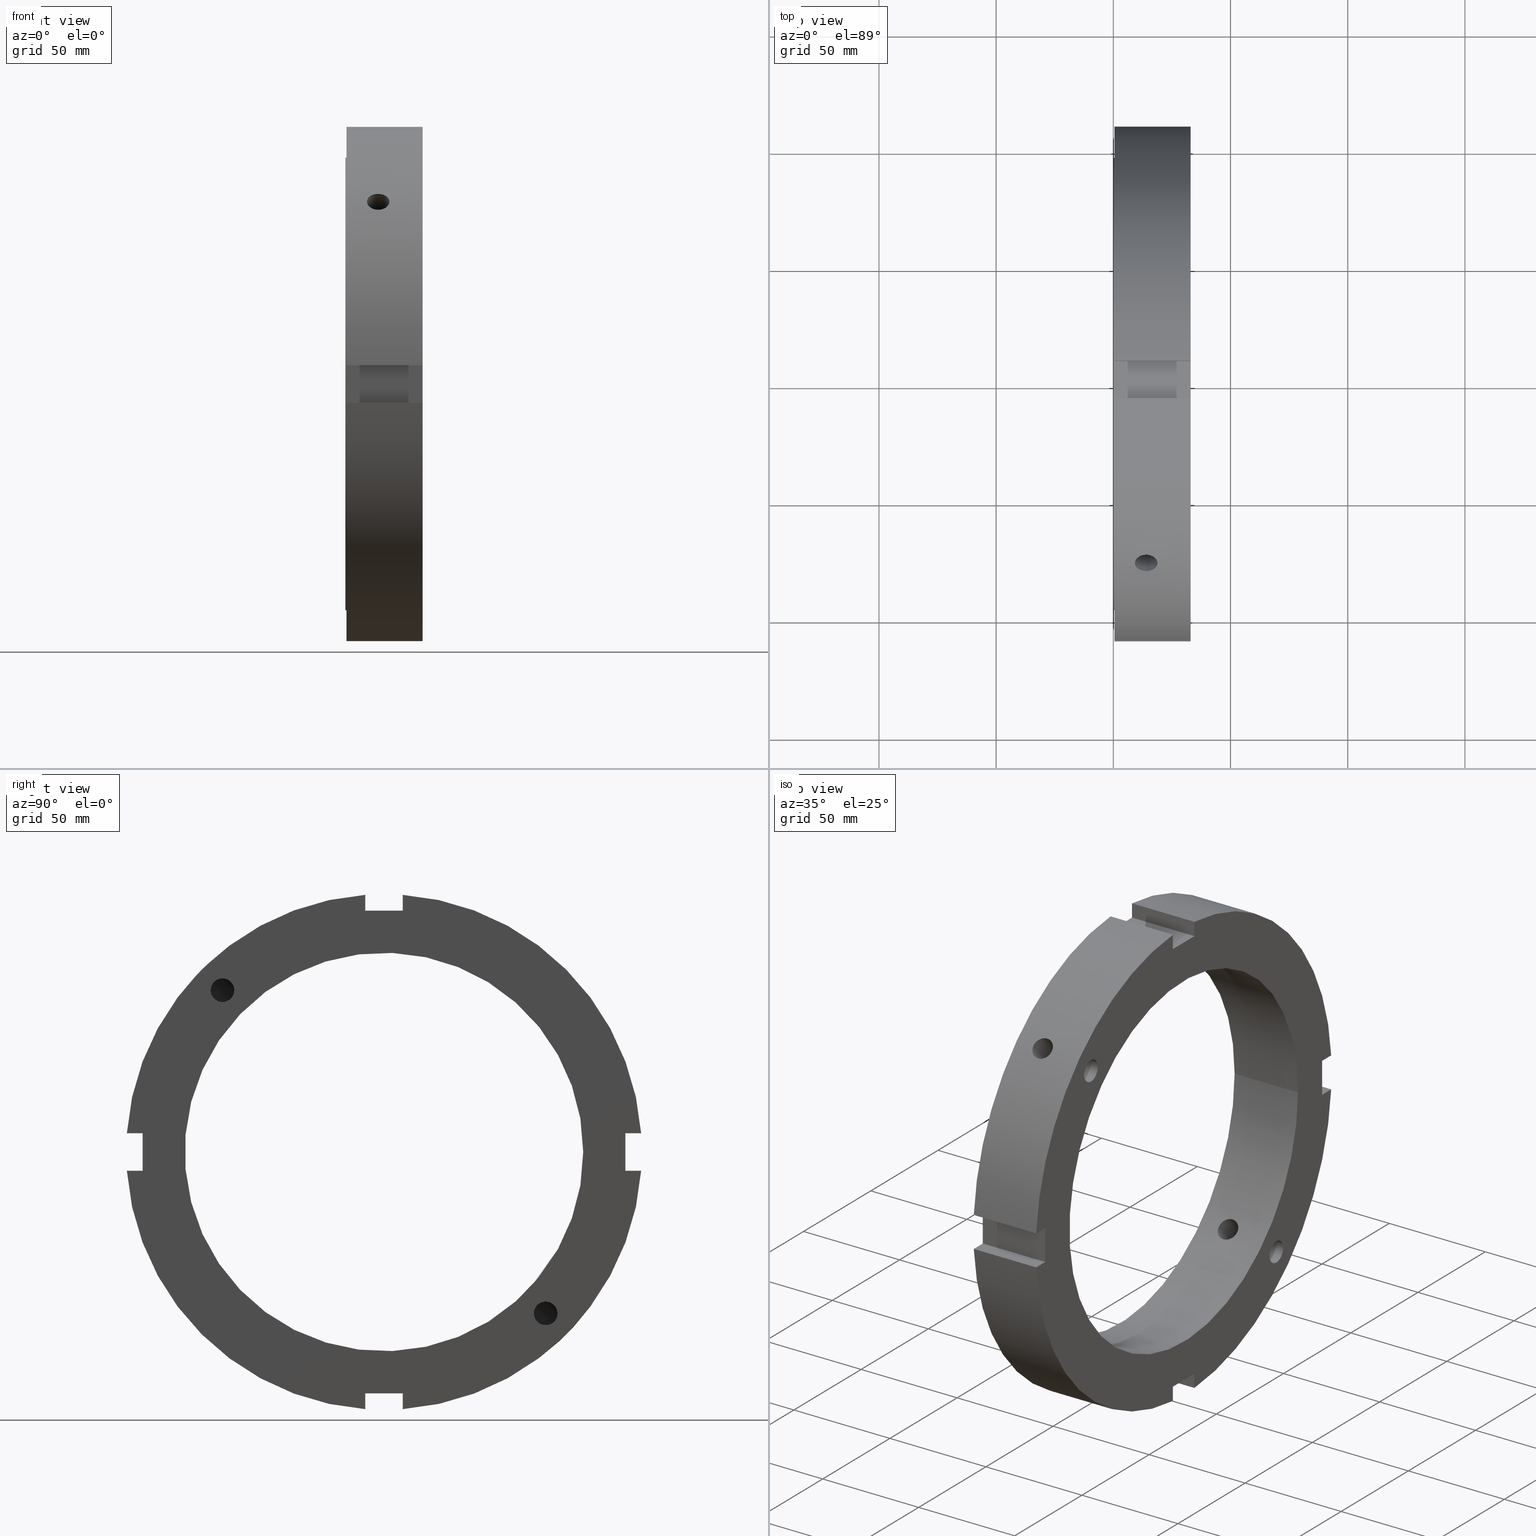
[diagram: canonical four-view strip — front | top / right | iso, engineering-drawing reading convention]
A machine part, canonical four-view strip (front | top / right | iso — engineering-drawing reading convention). The complete STEP part file that produces these views, byte-faithful:
ISO-10303-21;
HEADER;
/****************************************************************
 * Generated by software with PDElib inside                    *
 * PDElib Version v51a, created Wed 11/30/2011                  *
 * ITI Transcendata (http://www.transcendata.com/)              *
 ****************************************************************/
FILE_DESCRIPTION((''),'2;1');
FILE_NAME('C:\\Users\\sugidesign\\Documents\\Fukuda\\3Ddata\\ZMVtype\\FKD ZMV170.stp','2014-02-22T07:07:10',('sugidesign'),(''),'Autodesk Inventor LT ','Autodesk Inventor LT ','');
FILE_SCHEMA(('CONFIG_CONTROL_DESIGN'));
ENDSEC;
DATA;
#5=APPLICATION_CONTEXT('configuration controlled 3D designs of mechanical parts and assemblies');
#6=APPLICATION_PROTOCOL_DEFINITION('International Standard','ap203_configuration_controlled_3d_design_of_mechanical_parts_and_assemblies_mim_lf',2004,#5);
#7=PRODUCT_CONTEXT('',#5,'mechanical');
#8=PRODUCT('FKD ZMV170','FKD ZMV170',$,(#7));
#9=PRODUCT_RELATED_PRODUCT_CATEGORY('part',$,(#8));
#10=PRODUCT_DEFINITION_FORMATION('',$,#8);
#11=PRODUCT_DEFINITION_CONTEXT('part definition',#5,'design');
#12=PRODUCT_DEFINITION('',$,#10,#11);
#18=(NAMED_UNIT(*)PLANE_ANGLE_UNIT()SI_UNIT($,.RADIAN.));
#19=DIMENSIONAL_EXPONENTS(0.0,0.0,0.0,0.0,0.0,0.0,0.0);
#20=PLANE_ANGLE_MEASURE_WITH_UNIT(PLANE_ANGLE_MEASURE(0.0174532925),#18);
#24=(CONVERSION_BASED_UNIT('DEGREE',#20)NAMED_UNIT(#19)PLANE_ANGLE_UNIT());
#28=(NAMED_UNIT(*)SI_UNIT($,.STERADIAN.)SOLID_ANGLE_UNIT());
#32=(LENGTH_UNIT()NAMED_UNIT(*)SI_UNIT(.MILLI.,.METRE.));
#34=UNCERTAINTY_MEASURE_WITH_UNIT(LENGTH_MEASURE(0.01),#32,'DISTANCE_ACCURACY_VALUE','');
#36=(GEOMETRIC_REPRESENTATION_CONTEXT(3)GLOBAL_UNCERTAINTY_ASSIGNED_CONTEXT((#34))GLOBAL_UNIT_ASSIGNED_CONTEXT((#24,#28,#32))REPRESENTATION_CONTEXT('None','None'));
#37=AXIS2_PLACEMENT_3D('',#38,#39,#40);
#38=CARTESIAN_POINT('',(0.0,0.0,0.0));
#39=DIRECTION('',(0.0,0.0,1.0));
#40=DIRECTION('',(1.0,0.0,0.0));
#41=SHAPE_REPRESENTATION('',(#37),#36);
#42=PRODUCT_DEFINITION_SHAPE('','',#12);
#43=SHAPE_DEFINITION_REPRESENTATION(#42,#41);
#49=(NAMED_UNIT(*)PLANE_ANGLE_UNIT()SI_UNIT($,.RADIAN.));
#50=DIMENSIONAL_EXPONENTS(0.0,0.0,0.0,0.0,0.0,0.0,0.0);
#51=PLANE_ANGLE_MEASURE_WITH_UNIT(PLANE_ANGLE_MEASURE(0.0174532925),#49);
#55=(CONVERSION_BASED_UNIT('DEGREE',#51)NAMED_UNIT(#50)PLANE_ANGLE_UNIT());
#59=(NAMED_UNIT(*)SI_UNIT($,.STERADIAN.)SOLID_ANGLE_UNIT());
#63=(LENGTH_UNIT()NAMED_UNIT(*)SI_UNIT(.MILLI.,.METRE.));
#65=UNCERTAINTY_MEASURE_WITH_UNIT(LENGTH_MEASURE(0.000001),#63,'DISTANCE_ACCURACY_VALUE','');
#67=(GEOMETRIC_REPRESENTATION_CONTEXT(3)GLOBAL_UNCERTAINTY_ASSIGNED_CONTEXT((#65))GLOBAL_UNIT_ASSIGNED_CONTEXT((#55,#59,#63))REPRESENTATION_CONTEXT('','3D'));
#68=CARTESIAN_POINT('',(23.499999999999979,-68.942911165688358,68.942911165688386));
#69=DIRECTION('',(-1.0,0.0,0.0));
#70=DIRECTION('',(0.0,-1.0,0.0));
#71=AXIS2_PLACEMENT_3D('',#68,#69,#70);
#72=CYLINDRICAL_SURFACE('',#71,5.053);
#73=CARTESIAN_POINT('',(32.999999999999979,-73.995911165688355,68.942911165688386));
#74=VERTEX_POINT('',#73);
#75=CARTESIAN_POINT('',(32.999999999999979,-68.942911165688358,68.942911165688386));
#76=DIRECTION('',(-1.0,0.0,0.0));
#77=DIRECTION('',(0.0,-1.0,0.0));
#78=AXIS2_PLACEMENT_3D('',#75,#76,#77);
#79=CIRCLE('',#78,5.053);
#80=EDGE_CURVE('',#74,#74,#79,.T.);
#81=ORIENTED_EDGE('',*,*,#80,.F.);
#82=EDGE_LOOP('',(#81));
#83=FACE_OUTER_BOUND('',#82,.T.);
#84=CARTESIAN_POINT('',(13.999999999999979,-71.220598841063975,64.432373741673146));
#85=VERTEX_POINT('',#84);
#86=CARTESIAN_POINT('',(13.999999999999979,-64.432373741673118,71.220598841064032));
#87=VERTEX_POINT('',#86);
#88=CARTESIAN_POINT('',(13.999999999999979,-71.220598841063989,64.43237374167316));
#89=CARTESIAN_POINT('',(14.37139421069039,-71.220598841063989,64.43237374167316));
#90=CARTESIAN_POINT('',(14.685553977055426,-71.105705954268643,64.372922694567706));
#91=CARTESIAN_POINT('',(15.289385659561658,-70.789550454092762,64.236279865251419));
#92=CARTESIAN_POINT('',(15.576289933320794,-70.583731500313078,64.157456766124014));
#93=CARTESIAN_POINT('',(16.421279167485341,-69.877688991108485,63.953013115652539));
#94=CARTESIAN_POINT('',(16.951953474617987,-69.292086581676372,63.866779220975602));
#95=CARTESIAN_POINT('',(17.78353966815806,-68.170908368830837,63.921641481316662));
#96=CARTESIAN_POINT('',(18.1497572622063,-67.568788753036969,64.039148783968358));
#97=CARTESIAN_POINT('',(18.53149849689828,-66.691785693254815,64.40795621343149));
#98=CARTESIAN_POINT('',(18.631769033099488,-66.403298295562124,64.562172010366396));
#99=CARTESIAN_POINT('',(18.766048692575104,-65.857991936192761,64.927468173133619));
#100=CARTESIAN_POINT('',(18.799999999999986,-65.601196418013942,65.138604782691544));
#101=CARTESIAN_POINT('',(18.799999999999983,-65.138604782691516,65.601196418013984));
#102=CARTESIAN_POINT('',(18.766048692575104,-64.927468173133576,65.857991936192818));
#103=CARTESIAN_POINT('',(18.631769033099474,-64.562172010366353,66.403298295562195));
#104=CARTESIAN_POINT('',(18.531498496898273,-64.407956213431433,66.691785693254886));
#105=CARTESIAN_POINT('',(18.149757262206279,-64.039148783968315,67.568788753037069));
#106=CARTESIAN_POINT('',(17.783539668158063,-63.921641481316612,68.170908368830936));
#107=CARTESIAN_POINT('',(16.951953474617984,-63.866779220975573,69.292086581676472));
#108=CARTESIAN_POINT('',(16.421279167485299,-63.953013115652517,69.877688991108528));
#109=CARTESIAN_POINT('',(15.576289933320755,-64.157456766123985,70.583731500313107));
#110=CARTESIAN_POINT('',(15.289385659561638,-64.236279865251404,70.789550454092804));
#111=CARTESIAN_POINT('',(14.685553977055415,-64.372922694567691,71.105705954268672));
#112=CARTESIAN_POINT('',(14.371394210690385,-64.432373741673089,71.220598841063932));
#113=CARTESIAN_POINT('',(13.999999999999979,-64.432373741673089,71.220598841063932));
#114=B_SPLINE_CURVE_WITH_KNOTS('',3,(#88,#89,#90,#91,#92,#93,#94,#95,#96,#97,#98,#99,#100,#101,#102,#103,#104,#105,#106,#107,#108,#109,#110,#111,#112,#113),.UNSPECIFIED.,.F.,.U.,(4,2,2,2,2,2,2,2,2,2,2,2,4),(0.0,0.111418263207123,0.222836526414245,0.44567305282849,0.641934062182487,0.740064566859486,0.838195071536484,0.936325576213484,1.034456080890484,1.230717090244485,1.453553616658728,1.564971879865849,1.676390143072971),.UNSPECIFIED.);
#115=EDGE_CURVE('',#85,#87,#114,.T.);
#116=ORIENTED_EDGE('',*,*,#115,.F.);
#117=CARTESIAN_POINT('',(13.999999999999982,-73.453448589703612,66.665223490312769));
#118=VERTEX_POINT('',#117);
#119=CARTESIAN_POINT('',(13.999999999999979,-68.942911165688358,68.942911165688386));
#120=DIRECTION('',(-1.0,0.0,0.0));
#121=DIRECTION('',(0.0,-1.0,0.0));
#122=AXIS2_PLACEMENT_3D('',#119,#120,#121);
#123=CIRCLE('',#122,5.053);
#124=EDGE_CURVE('',#85,#118,#123,.T.);
#125=ORIENTED_EDGE('',*,*,#124,.T.);
#126=CARTESIAN_POINT('',(13.999999999999979,-66.665223490312698,73.453448589703612));
#127=VERTEX_POINT('',#126);
#128=CARTESIAN_POINT('',(13.999999999999979,-66.665223490312769,73.45344858970364));
#129=CARTESIAN_POINT('',(14.371394210690383,-66.665223490312769,73.45344858970364));
#130=CARTESIAN_POINT('',(14.68555397705542,-66.780116377108058,73.512899636809053));
#131=CARTESIAN_POINT('',(15.289385659561649,-67.096271877283925,73.64954246612534));
#132=CARTESIAN_POINT('',(15.576289933320771,-67.302090831063623,73.728365565252744));
#133=CARTESIAN_POINT('',(16.421279167485313,-68.008133340268216,73.932809215724234));
#134=CARTESIAN_POINT('',(16.951953474617984,-68.593735749700272,74.019043110401171));
#135=CARTESIAN_POINT('',(17.783539668158067,-69.714913962545808,73.964180850060131));
#136=CARTESIAN_POINT('',(18.149757262206272,-70.317033578339689,73.846673547408429));
#137=CARTESIAN_POINT('',(18.531498496898269,-71.194036638121872,73.477866117945297));
#138=CARTESIAN_POINT('',(18.631769033099481,-71.482524035814535,73.323650321010362));
#139=CARTESIAN_POINT('',(18.766048692575104,-72.027830395183926,72.958354158243154));
#140=CARTESIAN_POINT('',(18.799999999999983,-72.28462591336276,72.747217548685228));
#141=CARTESIAN_POINT('',(18.799999999999986,-72.7472175486852,72.284625913362802));
#142=CARTESIAN_POINT('',(18.766048692575104,-72.958354158243111,72.027830395183969));
#143=CARTESIAN_POINT('',(18.631769033099491,-73.323650321010319,71.482524035814606));
#144=CARTESIAN_POINT('',(18.531498496898294,-73.47786611794524,71.194036638121929));
#145=CARTESIAN_POINT('',(18.149757262206304,-73.846673547408358,70.317033578339775));
#146=CARTESIAN_POINT('',(17.783539668158056,-73.964180850060075,69.714913962545907));
#147=CARTESIAN_POINT('',(16.951953474617991,-74.019043110401142,68.593735749700372));
#148=CARTESIAN_POINT('',(16.421279167485352,-73.932809215724205,68.008133340268259));
#149=CARTESIAN_POINT('',(15.576289933320806,-73.72836556525273,67.302090831063666));
#150=CARTESIAN_POINT('',(15.289385659561702,-73.649542466125297,67.096271877283954));
#151=CARTESIAN_POINT('',(14.68555397705547,-73.51289963680901,66.780116377108058));
#152=CARTESIAN_POINT('',(14.371394210690392,-73.453448589703584,66.665223490312755));
#153=CARTESIAN_POINT('',(13.999999999999982,-73.453448589703584,66.665223490312755));
#154=B_SPLINE_CURVE_WITH_KNOTS('',3,(#128,#129,#130,#131,#132,#133,#134,#135,#136,#137,#138,#139,#140,#141,#142,#143,#144,#145,#146,#147,#148,#149,#150,#151,#152,#153),.UNSPECIFIED.,.F.,.U.,(4,2,2,2,2,2,2,2,2,2,2,2,4),(-1.676390143072971,-1.56497187986585,-1.453553616658728,-1.230717090244485,-1.034456080890484,-0.936325576213484,-0.838195071536484,-0.740064566859486,-0.641934062182487,-0.44567305282849,-0.222836526414245,-0.111418263207122,0.0),.UNSPECIFIED.);
#155=EDGE_CURVE('',#127,#118,#154,.T.);
#156=ORIENTED_EDGE('',*,*,#155,.F.);
#157=CARTESIAN_POINT('',(13.999999999999979,-68.942911165688358,68.942911165688386));
#158=DIRECTION('',(-1.0,0.0,0.0));
#159=DIRECTION('',(0.0,-1.0,0.0));
#160=AXIS2_PLACEMENT_3D('',#157,#158,#159);
#161=CIRCLE('',#160,5.053);
#162=EDGE_CURVE('',#127,#87,#161,.T.);
#163=ORIENTED_EDGE('',*,*,#162,.T.);
#164=EDGE_LOOP('',(#116,#125,#156,#163));
#165=FACE_BOUND('',#164,.T.);
#166=ADVANCED_FACE('',(#83,#165),#72,.F.);
#167=CARTESIAN_POINT('',(12.48192564602685,-68.942911165688358,68.942911165688386));
#168=DIRECTION('',(1.0,0.0,0.0));
#169=DIRECTION('',(0.0,-1.0,0.0));
#170=AXIS2_PLACEMENT_3D('',#167,#168,#169);
#171=CONICAL_SURFACE('',#170,2.5265,59.000000000000007);
#172=CARTESIAN_POINT('',(13.999999999999989,-73.453448589703612,66.665223490312769));
#173=CARTESIAN_POINT('',(13.899866928470605,-73.076316406116064,66.288091306725221));
#174=CARTESIAN_POINT('',(13.846507273038291,-72.69968455844166,65.914931065090542));
#175=CARTESIAN_POINT('',(13.846507273038288,-72.335287912363938,65.55053441901282));
#176=CARTESIAN_POINT('',(13.846507273038284,-71.976114872025718,65.191361378674614));
#177=CARTESIAN_POINT('',(13.899224632065541,-71.600150111992519,64.811925012601677));
#178=CARTESIAN_POINT('',(13.999999999999984,-71.220598841063989,64.432373741673146));
#179=B_SPLINE_CURVE_WITH_KNOTS('',3,(#172,#173,#174,#175,#176,#177,#178),.UNSPECIFIED.,.F.,.U.,(4,3,4),(-0.154600403689913,0.0,0.152384215465527),.UNSPECIFIED.);
#180=EDGE_CURVE('',#118,#85,#179,.T.);
#181=ORIENTED_EDGE('',*,*,#180,.F.);
#182=ORIENTED_EDGE('',*,*,#124,.F.);
#183=EDGE_LOOP('',(#181,#182));
#184=FACE_OUTER_BOUND('',#183,.T.);
#185=ADVANCED_FACE('',(#184),#171,.F.);
#186=CARTESIAN_POINT('',(12.48192564602685,-68.942911165688358,68.942911165688386));
#187=DIRECTION('',(1.0,0.0,0.0));
#188=DIRECTION('',(0.0,-1.0,0.0));
#189=AXIS2_PLACEMENT_3D('',#186,#187,#188);
#190=CONICAL_SURFACE('',#189,2.5265,59.000000000000007);
#191=CARTESIAN_POINT('',(13.99999999999997,-64.432373741673132,71.220598841064003));
#192=CARTESIAN_POINT('',(13.899224632065529,-64.811925012601662,71.600150111992519));
#193=CARTESIAN_POINT('',(13.846507273038288,-65.1913613786746,71.976114872025732));
#194=CARTESIAN_POINT('',(13.846507273038288,-65.914931065090499,72.69968455844166));
#195=CARTESIAN_POINT('',(13.899866928470592,-66.288091306725192,73.076316406116064));
#196=CARTESIAN_POINT('',(13.99999999999997,-66.665223490312712,73.453448589703584));
#197=B_SPLINE_CURVE_WITH_KNOTS('',3,(#191,#192,#193,#194,#195,#196),.UNSPECIFIED.,.F.,.U.,(4,2,4),(2.85982189161121,3.012206107076729,3.166806510766638),.UNSPECIFIED.);
#198=EDGE_CURVE('',#87,#127,#197,.T.);
#199=ORIENTED_EDGE('',*,*,#198,.F.);
#200=ORIENTED_EDGE('',*,*,#162,.F.);
#201=EDGE_LOOP('',(#199,#200));
#202=FACE_OUTER_BOUND('',#201,.T.);
#203=ADVANCED_FACE('',(#202),#190,.F.);
#204=CARTESIAN_POINT('',(13.999999999999984,-220.65470763162975,220.65470763162978));
#205=DIRECTION('',(0.0,-0.707106781186547,0.707106781186548));
#206=DIRECTION('',(1.0,0.0,0.0));
#207=AXIS2_PLACEMENT_3D('',#204,#205,#206);
#208=CYLINDRICAL_SURFACE('',#207,4.8);
#209=CARTESIAN_POINT('',(13.999999999999984,-81.101769830043281,74.313544730652438));
#210=VERTEX_POINT('',#209);
#211=CARTESIAN_POINT('',(13.999999999999984,-81.101769830043281,74.313544730652438));
#212=CARTESIAN_POINT('',(13.397219162658631,-81.101769830043281,74.313544730652438));
#213=CARTESIAN_POINT('',(12.754312377484176,-81.020444111866141,74.402605663708087));
#214=CARTESIAN_POINT('',(11.571714215531131,-80.688021853670932,74.762980297239196));
#215=CARTESIAN_POINT('',(11.03201635766915,-80.436727284065469,75.034090003951221));
#216=CARTESIAN_POINT('',(10.179758595131434,-79.852693613699714,75.655330820004025));
#217=CARTESIAN_POINT('',(9.810362950618794,-79.480973033163579,76.046858303843322));
#218=CARTESIAN_POINT('',(9.32048153488433,-78.658716575306158,76.897048310761122));
#219=CARTESIAN_POINT('',(9.199999999999983,-78.207976295969686,77.355515565070746));
#220=CARTESIAN_POINT('',(9.199999999999983,-77.355515565070746,78.207976295969701));
#221=CARTESIAN_POINT('',(9.320481534884324,-76.897048310761122,78.658716575306173));
#222=CARTESIAN_POINT('',(9.810362950618771,-76.046858303843322,79.480973033163593));
#223=CARTESIAN_POINT('',(10.179758595131441,-75.655330820004053,79.852693613699699));
#224=CARTESIAN_POINT('',(11.032016357669143,-75.034090003951235,80.436727284065455));
#225=CARTESIAN_POINT('',(11.571714215531108,-74.762980297239181,80.688021853670918));
#226=CARTESIAN_POINT('',(12.754312377484158,-74.402605663708073,81.020444111866169));
#227=CARTESIAN_POINT('',(13.397219162658626,-74.31354473065241,81.101769830043295));
#228=CARTESIAN_POINT('',(14.602780837341335,-74.31354473065241,81.101769830043295));
#229=CARTESIAN_POINT('',(15.245687622515797,-74.402605663708073,81.020444111866126));
#230=CARTESIAN_POINT('',(16.428285784468837,-74.762980297239181,80.688021853670918));
#231=CARTESIAN_POINT('',(16.967983642330818,-75.034090003951206,80.436727284065483));
#232=CARTESIAN_POINT('',(17.820241404868533,-75.655330820004025,79.852693613699728));
#233=CARTESIAN_POINT('',(18.189637049381179,-76.046858303843294,79.480973033163608));
#234=CARTESIAN_POINT('',(18.679518465115635,-76.897048310761107,78.658716575306173));
#235=CARTESIAN_POINT('',(18.799999999999983,-77.355515565070746,78.207976295969701));
#236=CARTESIAN_POINT('',(18.799999999999983,-78.207976295969686,77.35551556507076));
#237=CARTESIAN_POINT('',(18.679518465115635,-78.658716575306158,76.897048310761107));
#238=CARTESIAN_POINT('',(18.189637049381183,-79.480973033163579,76.046858303843322));
#239=CARTESIAN_POINT('',(17.820241404868526,-79.852693613699671,75.655330820004068));
#240=CARTESIAN_POINT('',(16.967983642330822,-80.436727284065455,75.034090003951249));
#241=CARTESIAN_POINT('',(16.428285784468855,-80.688021853670904,74.762980297239196));
#242=CARTESIAN_POINT('',(15.245687622515812,-81.020444111866126,74.402605663708087));
#243=CARTESIAN_POINT('',(14.602780837341339,-81.101769830043295,74.313544730652438));
#244=CARTESIAN_POINT('',(13.999999999999982,-81.101769830043295,74.313544730652438));
#245=B_SPLINE_CURVE_WITH_KNOTS('',3,(#211,#212,#213,#214,#215,#216,#217,#218,#219,#220,#221,#222,#223,#224,#225,#226,#227,#228,#229,#230,#231,#232,#233,#234,#235,#236,#237,#238,#239,#240,#241,#242,#243,#244),.UNSPECIFIED.,.T.,.U.,(4,2,2,2,2,2,2,2,2,2,2,2,2,2,2,2,4),(0.0,0.180834251202406,0.361668502404812,0.542502731458979,0.723336960513146,0.904171189567311,1.085005418621476,1.265839669823882,1.446673921026289,1.627508172228695,1.8083424234311,1.989176652485268,2.170010881539435,2.3508451105936,2.531679339647764,2.712513590850171,2.893347842052578),.UNSPECIFIED.);
#246=EDGE_CURVE('',#210,#210,#245,.T.);
#247=ORIENTED_EDGE('',*,*,#246,.F.);
#248=EDGE_LOOP('',(#247));
#249=FACE_OUTER_BOUND('',#248,.T.);
#250=ORIENTED_EDGE('',*,*,#180,.T.);
#251=ORIENTED_EDGE('',*,*,#115,.T.);
#252=ORIENTED_EDGE('',*,*,#198,.T.);
#253=ORIENTED_EDGE('',*,*,#155,.T.);
#254=EDGE_LOOP('',(#250,#251,#252,#253));
#255=FACE_BOUND('',#254,.T.);
#256=CARTESIAN_POINT('',(13.999999999999984,-63.40227866065068,56.614053561259858));
#257=VERTEX_POINT('',#256);
#258=CARTESIAN_POINT('',(13.999999999999984,-63.402278660650694,56.614053561259837));
#259=CARTESIAN_POINT('',(14.602836374740878,-63.402278660650694,56.614053561259837));
#260=CARTESIAN_POINT('',(15.245767039998402,-63.322079414098255,56.704271641118325));
#261=CARTESIAN_POINT('',(16.428349887984641,-62.993766847846366,57.068778696511167));
#262=CARTESIAN_POINT('',(16.968012948558588,-62.745397668970888,57.342801834121467));
#263=CARTESIAN_POINT('',(17.820212004282094,-62.166883234768626,57.969478862364944));
#264=CARTESIAN_POINT('',(18.189599264586882,-61.798101828790088,58.363896369407946));
#265=CARTESIAN_POINT('',(18.679496809854093,-60.979966152698204,59.218185695560742));
#266=CARTESIAN_POINT('',(18.799999999999983,-60.530345942773103,59.677806858939988));
#267=CARTESIAN_POINT('',(18.799999999999983,-59.677806858939974,60.53034594277311));
#268=CARTESIAN_POINT('',(18.679496809854097,-59.218185695560734,60.979966152698239));
#269=CARTESIAN_POINT('',(18.189599264586889,-58.363896369407939,61.798101828790124));
#270=CARTESIAN_POINT('',(17.820212004282094,-57.969478862364937,62.166883234768648));
#271=CARTESIAN_POINT('',(16.968012948558588,-57.34280183412146,62.745397668970909));
#272=CARTESIAN_POINT('',(16.428349887984627,-57.068778696511153,62.993766847846373));
#273=CARTESIAN_POINT('',(15.245767039998391,-56.704271641118311,63.322079414098241));
#274=CARTESIAN_POINT('',(14.602836374740875,-56.614053561259816,63.402278660650708));
#275=CARTESIAN_POINT('',(13.397163625259093,-56.614053561259816,63.402278660650708));
#276=CARTESIAN_POINT('',(12.754232960001579,-56.704271641118311,63.322079414098241));
#277=CARTESIAN_POINT('',(11.571650112015345,-57.068778696511153,62.993766847846373));
#278=CARTESIAN_POINT('',(11.03198705144138,-57.342801834121424,62.745397668970931));
#279=CARTESIAN_POINT('',(10.179787995717863,-57.969478862364895,62.166883234768676));
#280=CARTESIAN_POINT('',(9.810400735413099,-58.363896369407925,61.798101828790131));
#281=CARTESIAN_POINT('',(9.320503190145885,-59.218185695560734,60.979966152698225));
#282=CARTESIAN_POINT('',(9.199999999999983,-59.677806858939974,60.530345942773124));
#283=CARTESIAN_POINT('',(9.199999999999983,-60.530345942773103,59.677806858939981));
#284=CARTESIAN_POINT('',(9.320503190145876,-60.979966152698218,59.218185695560742));
#285=CARTESIAN_POINT('',(9.810400735413085,-61.798101828790102,58.363896369407946));
#286=CARTESIAN_POINT('',(10.179787995717875,-62.166883234768626,57.969478862364944));
#287=CARTESIAN_POINT('',(11.03198705144138,-62.745397668970888,57.342801834121467));
#288=CARTESIAN_POINT('',(11.571650112015327,-62.993766847846366,57.068778696511167));
#289=CARTESIAN_POINT('',(12.754232960001566,-63.322079414098255,56.704271641118325));
#290=CARTESIAN_POINT('',(13.39716362525909,-63.402278660650694,56.614053561259837));
#291=CARTESIAN_POINT('',(13.999999999999984,-63.402278660650694,56.614053561259837));
#292=B_SPLINE_CURVE_WITH_KNOTS('',3,(#258,#259,#260,#261,#262,#263,#264,#265,#266,#267,#268,#269,#270,#271,#272,#273,#274,#275,#276,#277,#278,#279,#280,#281,#282,#283,#284,#285,#286,#287,#288,#289,#290,#291),.UNSPECIFIED.,.T.,.U.,(4,2,2,2,2,2,2,2,2,2,2,2,2,2,2,2,4),(0.0,0.180850912422268,0.361701824844536,0.542552675066027,0.723403525287519,0.904254375509011,1.085105225730502,1.26595613815277,1.446807050575038,1.627657962997305,1.808508875419571,1.989359725641065,2.170210575862559,2.351061426084051,2.531912276305543,2.712763188727811,2.893614101150078),.UNSPECIFIED.);
#293=EDGE_CURVE('',#257,#257,#292,.T.);
#294=ORIENTED_EDGE('',*,*,#293,.F.);
#295=EDGE_LOOP('',(#294));
#296=FACE_BOUND('',#295,.T.);
#297=ADVANCED_FACE('',(#249,#255,#296),#208,.F.);
#298=CARTESIAN_POINT('',(12.48192564602685,68.942911165688358,-68.942911165688372));
#299=DIRECTION('',(1.0,0.0,0.0));
#300=DIRECTION('',(0.0,0.0,-1.0));
#301=AXIS2_PLACEMENT_3D('',#298,#299,#300);
#302=CONICAL_SURFACE('',#301,2.5265,59.000000000000007);
#303=CARTESIAN_POINT('',(13.999999999999979,64.432373741673132,-71.220598841063989));
#304=VERTEX_POINT('',#303);
#305=CARTESIAN_POINT('',(13.999999999999982,66.665223490312755,-73.453448589703626));
#306=VERTEX_POINT('',#305);
#307=CARTESIAN_POINT('',(13.999999999999984,64.432373741673118,-71.220598841063989));
#308=CARTESIAN_POINT('',(13.899224633106666,64.811925008680447,-71.600150108071318));
#309=CARTESIAN_POINT('',(13.846507273038284,65.191361382333568,-71.976114875684686));
#310=CARTESIAN_POINT('',(13.846507273038288,65.550534419012806,-72.335287912363953));
#311=CARTESIAN_POINT('',(13.846507273038293,65.914931065090514,-72.699684558441675));
#312=CARTESIAN_POINT('',(13.899866928470608,66.288091306725221,-73.076316406116092));
#313=CARTESIAN_POINT('',(13.999999999999989,66.665223490312755,-73.453448589703626));
#314=B_SPLINE_CURVE_WITH_KNOTS('',3,(#307,#308,#309,#310,#311,#312,#313),.UNSPECIFIED.,.F.,.U.,(4,3,4),(-0.152384213913155,0.0,0.154600403689911),.UNSPECIFIED.);
#315=EDGE_CURVE('',#304,#306,#314,.T.);
#316=ORIENTED_EDGE('',*,*,#315,.F.);
#317=CARTESIAN_POINT('',(13.999999999999979,68.942911165688358,-68.942911165688372));
#318=DIRECTION('',(1.0,0.0,0.0));
#319=DIRECTION('',(0.0,0.0,-1.0));
#320=AXIS2_PLACEMENT_3D('',#317,#318,#319);
#321=CIRCLE('',#320,5.053);
#322=EDGE_CURVE('',#304,#306,#321,.T.);
#323=ORIENTED_EDGE('',*,*,#322,.T.);
#324=EDGE_LOOP('',(#316,#323));
#325=FACE_OUTER_BOUND('',#324,.T.);
#326=ADVANCED_FACE('',(#325),#302,.F.);
#327=CARTESIAN_POINT('',(12.48192564602685,68.942911165688358,-68.942911165688372));
#328=DIRECTION('',(1.0,0.0,0.0));
#329=DIRECTION('',(0.0,0.0,-1.0));
#330=AXIS2_PLACEMENT_3D('',#327,#328,#329);
#331=CONICAL_SURFACE('',#330,2.5265,59.000000000000007);
#332=CARTESIAN_POINT('',(13.999999999999979,73.453448589703584,-66.665223490312712));
#333=VERTEX_POINT('',#332);
#334=CARTESIAN_POINT('',(13.999999999999979,71.220598841064003,-64.432373741673132));
#335=VERTEX_POINT('',#334);
#336=CARTESIAN_POINT('',(13.999999999999972,73.453448589703584,-66.665223490312741));
#337=CARTESIAN_POINT('',(13.899866928470598,73.07631640611605,-66.288091306725207));
#338=CARTESIAN_POINT('',(13.846507273038288,72.699684558441632,-65.914931065090514));
#339=CARTESIAN_POINT('',(13.846507273038288,71.976114872025704,-65.1913613786746));
#340=CARTESIAN_POINT('',(13.89922463206554,71.600150111992505,-64.811925012601662));
#341=CARTESIAN_POINT('',(13.999999999999979,71.220598841063989,-64.432373741673132));
#342=B_SPLINE_CURVE_WITH_KNOTS('',3,(#336,#337,#338,#339,#340,#341),.UNSPECIFIED.,.F.,.U.,(4,2,4),(2.893006925034587,3.047607328724495,3.199991544190016),.UNSPECIFIED.);
#343=EDGE_CURVE('',#333,#335,#342,.T.);
#344=ORIENTED_EDGE('',*,*,#343,.F.);
#345=CARTESIAN_POINT('',(13.999999999999979,68.942911165688358,-68.942911165688372));
#346=DIRECTION('',(1.0,0.0,0.0));
#347=DIRECTION('',(0.0,0.0,-1.0));
#348=AXIS2_PLACEMENT_3D('',#345,#346,#347);
#349=CIRCLE('',#348,5.053);
#350=EDGE_CURVE('',#333,#335,#349,.T.);
#351=ORIENTED_EDGE('',*,*,#350,.T.);
#352=EDGE_LOOP('',(#344,#351));
#353=FACE_OUTER_BOUND('',#352,.T.);
#354=ADVANCED_FACE('',(#353),#331,.F.);
#355=CARTESIAN_POINT('',(23.499999999999979,68.942911165688358,-68.942911165688372));
#356=DIRECTION('',(1.0,0.0,0.0));
#357=DIRECTION('',(0.0,0.0,-1.0));
#358=AXIS2_PLACEMENT_3D('',#355,#356,#357);
#359=CYLINDRICAL_SURFACE('',#358,5.053);
#360=CARTESIAN_POINT('',(13.999999999999984,66.665223490312741,-73.453448589703612));
#361=CARTESIAN_POINT('',(14.371394210690394,66.665223490312741,-73.453448589703612));
#362=CARTESIAN_POINT('',(14.685553977055473,66.780116377108044,-73.512899636809038));
#363=CARTESIAN_POINT('',(15.289385659561706,67.096271877283925,-73.649542466125325));
#364=CARTESIAN_POINT('',(15.576289933320806,67.302090831063651,-73.728365565252744));
#365=CARTESIAN_POINT('',(16.421279167485352,68.008133340268245,-73.93280921572422));
#366=CARTESIAN_POINT('',(16.951953474617987,68.593735749700357,-74.019043110401157));
#367=CARTESIAN_POINT('',(17.783539668158056,69.714913962545893,-73.964180850060103));
#368=CARTESIAN_POINT('',(18.1497572622063,70.317033578339732,-73.8466735474084));
#369=CARTESIAN_POINT('',(18.531498496898287,71.194036638121901,-73.477866117945268));
#370=CARTESIAN_POINT('',(18.631769033099484,71.482524035814578,-73.323650321010348));
#371=CARTESIAN_POINT('',(18.766048692575104,72.027830395183955,-72.958354158243125));
#372=CARTESIAN_POINT('',(18.799999999999986,72.284625913362788,-72.747217548685214));
#373=CARTESIAN_POINT('',(18.799999999999983,72.747217548685214,-72.284625913362788));
#374=CARTESIAN_POINT('',(18.766048692575104,72.958354158243139,-72.02783039518394));
#375=CARTESIAN_POINT('',(18.631769033099474,73.323650321010362,-71.482524035814549));
#376=CARTESIAN_POINT('',(18.531498496898266,73.477866117945268,-71.194036638121872));
#377=CARTESIAN_POINT('',(18.149757262206268,73.8466735474084,-70.317033578339704));
#378=CARTESIAN_POINT('',(17.783539668158063,73.964180850060117,-69.714913962545822));
#379=CARTESIAN_POINT('',(16.951953474617984,74.019043110401157,-68.593735749700286));
#380=CARTESIAN_POINT('',(16.421279167485313,73.932809215724205,-68.008133340268245));
#381=CARTESIAN_POINT('',(15.576289933320771,73.72836556525273,-67.302090831063651));
#382=CARTESIAN_POINT('',(15.289385659561642,73.649542466125311,-67.096271877283925));
#383=CARTESIAN_POINT('',(14.68555397705541,73.512899636809024,-66.780116377108044));
#384=CARTESIAN_POINT('',(14.37139421069039,73.453448589703612,-66.665223490312783));
#385=CARTESIAN_POINT('',(13.999999999999984,73.453448589703612,-66.665223490312783));
#386=B_SPLINE_CURVE_WITH_KNOTS('',3,(#360,#361,#362,#363,#364,#365,#366,#367,#368,#369,#370,#371,#372,#373,#374,#375,#376,#377,#378,#379,#380,#381,#382,#383,#384,#385),.UNSPECIFIED.,.F.,.U.,(4,2,2,2,2,2,2,2,2,2,2,2,4),(0.0,0.111418263207123,0.222836526414245,0.44567305282849,0.641934062182487,0.740064566859485,0.838195071536484,0.936325576213484,1.034456080890484,1.230717090244484,1.453553616658727,1.564971879865849,1.67639014307297),.UNSPECIFIED.);
#387=EDGE_CURVE('',#306,#333,#386,.T.);
#388=ORIENTED_EDGE('',*,*,#387,.F.);
#389=ORIENTED_EDGE('',*,*,#322,.F.);
#390=CARTESIAN_POINT('',(13.999999999999984,71.220598841063946,-64.432373741673118));
#391=CARTESIAN_POINT('',(14.37139421069039,71.220598841063946,-64.432373741673118));
#392=CARTESIAN_POINT('',(14.685553977055424,71.105705954268686,-64.37292269456772));
#393=CARTESIAN_POINT('',(15.289385659561654,70.789550454092819,-64.236279865251433));
#394=CARTESIAN_POINT('',(15.576289933320755,70.583731500313078,-64.157456766124));
#395=CARTESIAN_POINT('',(16.421279167485295,69.877688991108485,-63.953013115652524));
#396=CARTESIAN_POINT('',(16.951953474617984,69.292086581676458,-63.866779220975587));
#397=CARTESIAN_POINT('',(17.783539668158063,68.170908368830908,-63.921641481316627));
#398=CARTESIAN_POINT('',(18.149757262206275,67.56878875303704,-64.039148783968329));
#399=CARTESIAN_POINT('',(18.531498496898269,66.691785693254872,-64.407956213431447));
#400=CARTESIAN_POINT('',(18.63176903309947,66.403298295562195,-64.562172010366382));
#401=CARTESIAN_POINT('',(18.766048692575097,65.857991936192803,-64.92746817313359));
#402=CARTESIAN_POINT('',(18.799999999999983,65.601196418013956,-65.13860478269153));
#403=CARTESIAN_POINT('',(18.799999999999983,65.13860478269153,-65.601196418013956));
#404=CARTESIAN_POINT('',(18.766048692575108,64.927468173133605,-65.857991936192775));
#405=CARTESIAN_POINT('',(18.631769033099488,64.562172010366382,-66.403298295562138));
#406=CARTESIAN_POINT('',(18.531498496898291,64.407956213431476,-66.691785693254829));
#407=CARTESIAN_POINT('',(18.149757262206304,64.039148783968344,-67.568788753036998));
#408=CARTESIAN_POINT('',(17.783539668158056,63.921641481316641,-68.170908368830851));
#409=CARTESIAN_POINT('',(16.951953474617987,63.86677922097558,-69.292086581676386));
#410=CARTESIAN_POINT('',(16.421279167485345,63.953013115652517,-69.877688991108499));
#411=CARTESIAN_POINT('',(15.576289933320794,64.157456766124,-70.583731500313093));
#412=CARTESIAN_POINT('',(15.289385659561658,64.236279865251404,-70.789550454092776));
#413=CARTESIAN_POINT('',(14.685553977055426,64.372922694567691,-71.105705954268657));
#414=CARTESIAN_POINT('',(14.371394210690394,64.43237374167316,-71.220598841064046));
#415=CARTESIAN_POINT('',(13.999999999999984,64.43237374167316,-71.220598841064046));
#416=B_SPLINE_CURVE_WITH_KNOTS('',3,(#390,#391,#392,#393,#394,#395,#396,#397,#398,#399,#400,#401,#402,#403,#404,#405,#406,#407,#408,#409,#410,#411,#412,#413,#414,#415),.UNSPECIFIED.,.F.,.U.,(4,2,2,2,2,2,2,2,2,2,2,2,4),(-1.676390143072971,-1.564971879865849,-1.453553616658728,-1.230717090244485,-1.034456080890484,-0.936325576213484,-0.838195071536484,-0.740064566859486,-0.641934062182487,-0.44567305282849,-0.222836526414245,-0.111418263207122,0.0),.UNSPECIFIED.);
#417=EDGE_CURVE('',#335,#304,#416,.T.);
#418=ORIENTED_EDGE('',*,*,#417,.F.);
#419=ORIENTED_EDGE('',*,*,#350,.F.);
#420=EDGE_LOOP('',(#388,#389,#418,#419));
#421=FACE_OUTER_BOUND('',#420,.T.);
#422=CARTESIAN_POINT('',(32.999999999999979,68.942911165688358,-73.995911165688369));
#423=VERTEX_POINT('',#422);
#424=CARTESIAN_POINT('',(32.999999999999979,68.942911165688358,-68.942911165688372));
#425=DIRECTION('',(-1.0,0.0,0.0));
#426=DIRECTION('',(0.0,0.0,-1.0));
#427=AXIS2_PLACEMENT_3D('',#424,#425,#426);
#428=CIRCLE('',#427,5.053);
#429=EDGE_CURVE('',#423,#423,#428,.T.);
#430=ORIENTED_EDGE('',*,*,#429,.F.);
#431=EDGE_LOOP('',(#430));
#432=FACE_BOUND('',#431,.T.);
#433=ADVANCED_FACE('',(#421,#432),#359,.F.);
#434=CARTESIAN_POINT('',(13.999999999999984,220.65470763162975,-220.65470763162978));
#435=DIRECTION('',(0.0,-0.707106781186547,0.707106781186548));
#436=DIRECTION('',(1.0,0.0,0.0));
#437=AXIS2_PLACEMENT_3D('',#434,#435,#436);
#438=CYLINDRICAL_SURFACE('',#437,4.8);
#439=CARTESIAN_POINT('',(13.999999999999984,74.313544730652424,-81.101769830043295));
#440=VERTEX_POINT('',#439);
#441=CARTESIAN_POINT('',(13.999999999999982,74.313544730652424,-81.101769830043295));
#442=CARTESIAN_POINT('',(14.602780837341339,74.313544730652424,-81.101769830043295));
#443=CARTESIAN_POINT('',(15.245687622515806,74.402605663708073,-81.020444111866169));
#444=CARTESIAN_POINT('',(16.428285784468855,74.762980297239181,-80.688021853670918));
#445=CARTESIAN_POINT('',(16.967983642330822,75.034090003951235,-80.436727284065455));
#446=CARTESIAN_POINT('',(17.820241404868526,75.655330820004053,-79.852693613699699));
#447=CARTESIAN_POINT('',(18.18963704938119,76.046858303843322,-79.480973033163579));
#448=CARTESIAN_POINT('',(18.679518465115638,76.897048310761107,-78.658716575306158));
#449=CARTESIAN_POINT('',(18.799999999999983,77.355515565070746,-78.207976295969701));
#450=CARTESIAN_POINT('',(18.799999999999983,78.207976295969686,-77.35551556507076));
#451=CARTESIAN_POINT('',(18.679518465115645,78.658716575306158,-76.897048310761136));
#452=CARTESIAN_POINT('',(18.189637049381197,79.480973033163579,-76.046858303843337));
#453=CARTESIAN_POINT('',(17.820241404868522,79.852693613699671,-75.655330820004068));
#454=CARTESIAN_POINT('',(16.967983642330818,80.436727284065455,-75.034090003951249));
#455=CARTESIAN_POINT('',(16.428285784468855,80.68802185367089,-74.762980297239196));
#456=CARTESIAN_POINT('',(15.245687622515812,81.020444111866126,-74.402605663708087));
#457=CARTESIAN_POINT('',(14.60278083734134,81.101769830043295,-74.313544730652424));
#458=CARTESIAN_POINT('',(13.397219162658631,81.101769830043295,-74.313544730652424));
#459=CARTESIAN_POINT('',(12.754312377484174,81.020444111866141,-74.402605663708087));
#460=CARTESIAN_POINT('',(11.571714215531131,80.688021853670932,-74.762980297239196));
#461=CARTESIAN_POINT('',(11.03201635766915,80.436727284065469,-75.034090003951221));
#462=CARTESIAN_POINT('',(10.179758595131434,79.852693613699714,-75.655330820004039));
#463=CARTESIAN_POINT('',(9.810362950618792,79.480973033163579,-76.046858303843322));
#464=CARTESIAN_POINT('',(9.32048153488433,78.658716575306158,-76.897048310761122));
#465=CARTESIAN_POINT('',(9.199999999999983,78.207976295969686,-77.35551556507076));
#466=CARTESIAN_POINT('',(9.199999999999983,77.355515565070746,-78.207976295969701));
#467=CARTESIAN_POINT('',(9.32048153488433,76.897048310761093,-78.658716575306173));
#468=CARTESIAN_POINT('',(9.810362950618782,76.046858303843308,-79.480973033163593));
#469=CARTESIAN_POINT('',(10.179758595131441,75.655330820004053,-79.852693613699699));
#470=CARTESIAN_POINT('',(11.032016357669143,75.034090003951235,-80.436727284065455));
#471=CARTESIAN_POINT('',(11.571714215531099,74.762980297239181,-80.688021853670918));
#472=CARTESIAN_POINT('',(12.754312377484148,74.402605663708073,-81.020444111866169));
#473=CARTESIAN_POINT('',(13.397219162658626,74.313544730652424,-81.101769830043295));
#474=CARTESIAN_POINT('',(13.999999999999984,74.313544730652424,-81.101769830043295));
#475=B_SPLINE_CURVE_WITH_KNOTS('',3,(#441,#442,#443,#444,#445,#446,#447,#448,#449,#450,#451,#452,#453,#454,#455,#456,#457,#458,#459,#460,#461,#462,#463,#464,#465,#466,#467,#468,#469,#470,#471,#472,#473,#474),.UNSPECIFIED.,.T.,.U.,(4,2,2,2,2,2,2,2,2,2,2,2,2,2,2,2,4),(0.0,0.180834251202407,0.361668502404814,0.542502731458978,0.723336960513143,0.904171189567308,1.085005418621472,1.265839669823879,1.446673921026286,1.627508172228692,1.808342423431098,1.989176652485265,2.170010881539432,2.350845110593597,2.531679339647762,2.712513590850168,2.893347842052576),.UNSPECIFIED.);
#476=EDGE_CURVE('',#440,#440,#475,.T.);
#477=ORIENTED_EDGE('',*,*,#476,.F.);
#478=EDGE_LOOP('',(#477));
#479=FACE_OUTER_BOUND('',#478,.T.);
#480=ORIENTED_EDGE('',*,*,#315,.T.);
#481=ORIENTED_EDGE('',*,*,#387,.T.);
#482=ORIENTED_EDGE('',*,*,#343,.T.);
#483=ORIENTED_EDGE('',*,*,#417,.T.);
#484=EDGE_LOOP('',(#480,#481,#482,#483));
#485=FACE_BOUND('',#484,.T.);
#486=CARTESIAN_POINT('',(13.999999999999984,56.614053561259837,-63.402278660650694));
#487=VERTEX_POINT('',#486);
#488=CARTESIAN_POINT('',(13.999999999999984,56.61405356125983,-63.402278660650694));
#489=CARTESIAN_POINT('',(13.397163625259093,56.61405356125983,-63.402278660650694));
#490=CARTESIAN_POINT('',(12.75423296000158,56.704271641118311,-63.322079414098241));
#491=CARTESIAN_POINT('',(11.571650112015346,57.068778696511153,-62.993766847846373));
#492=CARTESIAN_POINT('',(11.03198705144138,57.342801834121424,-62.745397668970931));
#493=CARTESIAN_POINT('',(10.179787995717863,57.969478862364895,-62.166883234768676));
#494=CARTESIAN_POINT('',(9.810400735413099,58.363896369407925,-61.798101828790131));
#495=CARTESIAN_POINT('',(9.320503190145885,59.218185695560734,-60.979966152698225));
#496=CARTESIAN_POINT('',(9.199999999999983,59.677806858939974,-60.530345942773124));
#497=CARTESIAN_POINT('',(9.199999999999983,60.530345942773103,-59.677806858939988));
#498=CARTESIAN_POINT('',(9.320503190145876,60.979966152698218,-59.218185695560742));
#499=CARTESIAN_POINT('',(9.810400735413085,61.798101828790102,-58.363896369407946));
#500=CARTESIAN_POINT('',(10.179787995717875,62.166883234768633,-57.969478862364952));
#501=CARTESIAN_POINT('',(11.03198705144138,62.745397668970888,-57.342801834121467));
#502=CARTESIAN_POINT('',(11.571650112015327,62.993766847846366,-57.068778696511167));
#503=CARTESIAN_POINT('',(12.754232960001566,63.322079414098255,-56.704271641118325));
#504=CARTESIAN_POINT('',(13.39716362525909,63.402278660650701,-56.614053561259823));
#505=CARTESIAN_POINT('',(14.602836374740873,63.402278660650701,-56.614053561259823));
#506=CARTESIAN_POINT('',(15.245767039998395,63.322079414098241,-56.704271641118311));
#507=CARTESIAN_POINT('',(16.428349887984623,62.993766847846373,-57.068778696511153));
#508=CARTESIAN_POINT('',(16.968012948558588,62.745397668970924,-57.342801834121445));
#509=CARTESIAN_POINT('',(17.820212004282105,62.166883234768662,-57.969478862364916));
#510=CARTESIAN_POINT('',(18.189599264586857,61.798101828790109,-58.363896369407932));
#511=CARTESIAN_POINT('',(18.679496809854086,60.979966152698225,-59.218185695560734));
#512=CARTESIAN_POINT('',(18.799999999999983,60.530345942773103,-59.677806858939974));
#513=CARTESIAN_POINT('',(18.799999999999983,59.677806858939974,-60.53034594277311));
#514=CARTESIAN_POINT('',(18.679496809854097,59.218185695560734,-60.979966152698211));
#515=CARTESIAN_POINT('',(18.189599264586892,58.363896369407939,-61.798101828790095));
#516=CARTESIAN_POINT('',(17.820212004282098,57.969478862364937,-62.166883234768648));
#517=CARTESIAN_POINT('',(16.968012948558588,57.34280183412146,-62.745397668970909));
#518=CARTESIAN_POINT('',(16.428349887984627,57.068778696511153,-62.993766847846373));
#519=CARTESIAN_POINT('',(15.245767039998395,56.704271641118311,-63.322079414098241));
#520=CARTESIAN_POINT('',(14.602836374740878,56.61405356125983,-63.402278660650694));
#521=CARTESIAN_POINT('',(13.999999999999984,56.61405356125983,-63.402278660650694));
#522=B_SPLINE_CURVE_WITH_KNOTS('',3,(#488,#489,#490,#491,#492,#493,#494,#495,#496,#497,#498,#499,#500,#501,#502,#503,#504,#505,#506,#507,#508,#509,#510,#511,#512,#513,#514,#515,#516,#517,#518,#519,#520,#521),.UNSPECIFIED.,.T.,.U.,(4,2,2,2,2,2,2,2,2,2,2,2,2,2,2,2,4),(0.0,0.180850912422267,0.361701824844533,0.542552675066027,0.723403525287521,0.904254375509013,1.085105225730505,1.265956138152772,1.44680705057504,1.627657962997307,1.808508875419574,1.989359725641068,2.170210575862562,2.351061426084054,2.531912276305545,2.712763188727813,2.893614101150081),.UNSPECIFIED.);
#523=EDGE_CURVE('',#487,#487,#522,.T.);
#524=ORIENTED_EDGE('',*,*,#523,.F.);
#525=EDGE_LOOP('',(#524));
#526=FACE_BOUND('',#525,.T.);
#527=ADVANCED_FACE('',(#479,#485,#526),#438,.F.);
#528=CARTESIAN_POINT('',(32.999999999999979,-8.000000000000014,-103.0));
#529=DIRECTION('',(0.0,-1.0,0.0));
#530=DIRECTION('',(-1.0,0.0,0.0));
#531=AXIS2_PLACEMENT_3D('',#528,#529,#530);
#532=PLANE('',#531);
#533=CARTESIAN_POINT('',(0.499999999999972,-8.000000000000014,-103.0));
#534=VERTEX_POINT('',#533);
#535=CARTESIAN_POINT('',(0.499999999999967,-8.000000000000012,-109.70870521521982));
#536=VERTEX_POINT('',#535);
#537=CARTESIAN_POINT('',(0.499999999999969,-8.000000000000009,-103.0));
#538=DIRECTION('',(0.0,0.0,-1.0));
#539=VECTOR('',#538,6.708705215219823);
#540=LINE('',#537,#539);
#541=EDGE_CURVE('',#534,#536,#540,.T.);
#542=ORIENTED_EDGE('',*,*,#541,.F.);
#543=CARTESIAN_POINT('',(32.999999999999979,-8.000000000000014,-103.0));
#544=VERTEX_POINT('',#543);
#545=CARTESIAN_POINT('',(32.999999999999979,-8.000000000000014,-103.0));
#546=DIRECTION('',(-1.0,0.0,0.0));
#547=VECTOR('',#546,32.500000000000007);
#548=LINE('',#545,#547);
#549=EDGE_CURVE('',#544,#534,#548,.T.);
#550=ORIENTED_EDGE('',*,*,#549,.F.);
#551=CARTESIAN_POINT('',(32.999999999999979,-8.000000000000014,-109.70870521521982));
#552=VERTEX_POINT('',#551);
#553=CARTESIAN_POINT('',(32.999999999999979,-8.000000000000009,-109.70870521521982));
#554=DIRECTION('',(0.0,0.0,1.0));
#555=VECTOR('',#554,6.708705215219823);
#556=LINE('',#553,#555);
#557=EDGE_CURVE('',#552,#544,#556,.T.);
#558=ORIENTED_EDGE('',*,*,#557,.F.);
#559=CARTESIAN_POINT('',(0.499999999999968,-8.000000000000014,-109.70870521521982));
#560=DIRECTION('',(1.0,0.0,0.0));
#561=VECTOR('',#560,32.500000000000014);
#562=LINE('',#559,#561);
#563=EDGE_CURVE('',#536,#552,#562,.T.);
#564=ORIENTED_EDGE('',*,*,#563,.F.);
#565=EDGE_LOOP('',(#542,#550,#558,#564));
#566=FACE_OUTER_BOUND('',#565,.T.);
#567=ADVANCED_FACE('',(#566),#532,.F.);
#568=CARTESIAN_POINT('',(32.999999999999979,7.999999999999973,-110.0));
#569=DIRECTION('',(0.0,1.0,0.0));
#570=DIRECTION('',(1.0,0.0,0.0));
#571=AXIS2_PLACEMENT_3D('',#568,#569,#570);
#572=PLANE('',#571);
#573=CARTESIAN_POINT('',(0.499999999999967,7.999999999999973,-109.70870521521982));
#574=VERTEX_POINT('',#573);
#575=CARTESIAN_POINT('',(0.499999999999972,7.999999999999976,-103.0));
#576=VERTEX_POINT('',#575);
#577=CARTESIAN_POINT('',(0.499999999999969,7.999999999999971,-109.70870521521982));
#578=DIRECTION('',(0.0,0.0,1.0));
#579=VECTOR('',#578,6.708705215219808);
#580=LINE('',#577,#579);
#581=EDGE_CURVE('',#574,#576,#580,.T.);
#582=ORIENTED_EDGE('',*,*,#581,.F.);
#583=CARTESIAN_POINT('',(32.999999999999979,7.999999999999973,-109.70870521521982));
#584=VERTEX_POINT('',#583);
#585=CARTESIAN_POINT('',(32.999999999999979,7.999999999999973,-109.70870521521982));
#586=DIRECTION('',(-1.0,0.0,0.0));
#587=VECTOR('',#586,32.500000000000014);
#588=LINE('',#585,#587);
#589=EDGE_CURVE('',#584,#574,#588,.T.);
#590=ORIENTED_EDGE('',*,*,#589,.F.);
#591=CARTESIAN_POINT('',(32.999999999999979,7.999999999999976,-103.0));
#592=VERTEX_POINT('',#591);
#593=CARTESIAN_POINT('',(32.999999999999979,7.999999999999973,-103.00000000000001));
#594=DIRECTION('',(0.0,0.0,-1.0));
#595=VECTOR('',#594,6.708705215219808);
#596=LINE('',#593,#595);
#597=EDGE_CURVE('',#592,#584,#596,.T.);
#598=ORIENTED_EDGE('',*,*,#597,.F.);
#599=CARTESIAN_POINT('',(32.999999999999979,7.999999999999976,-103.0));
#600=DIRECTION('',(-1.0,0.0,0.0));
#601=VECTOR('',#600,32.500000000000007);
#602=LINE('',#599,#601);
#603=EDGE_CURVE('',#592,#576,#602,.T.);
#604=ORIENTED_EDGE('',*,*,#603,.T.);
#605=EDGE_LOOP('',(#582,#590,#598,#604));
#606=FACE_OUTER_BOUND('',#605,.T.);
#607=ADVANCED_FACE('',(#606),#572,.F.);
#608=CARTESIAN_POINT('',(32.999999999999979,7.999999999999976,-103.0));
#609=DIRECTION('',(0.0,0.0,1.0));
#610=DIRECTION('',(0.0,-1.0,0.0));
#611=AXIS2_PLACEMENT_3D('',#608,#609,#610);
#612=PLANE('',#611);
#613=CARTESIAN_POINT('',(0.499999999999969,7.999999999999979,-102.99999999999999));
#614=DIRECTION('',(0.0,-1.0,0.0));
#615=VECTOR('',#614,15.999999999999993);
#616=LINE('',#613,#615);
#617=EDGE_CURVE('',#576,#534,#616,.T.);
#618=ORIENTED_EDGE('',*,*,#617,.F.);
#619=ORIENTED_EDGE('',*,*,#603,.F.);
#620=CARTESIAN_POINT('',(32.999999999999979,-8.000000000000014,-102.99999999999999));
#621=DIRECTION('',(0.0,1.0,0.0));
#622=VECTOR('',#621,15.999999999999993);
#623=LINE('',#620,#622);
#624=EDGE_CURVE('',#544,#592,#623,.T.);
#625=ORIENTED_EDGE('',*,*,#624,.F.);
#626=ORIENTED_EDGE('',*,*,#549,.T.);
#627=EDGE_LOOP('',(#618,#619,#625,#626));
#628=FACE_OUTER_BOUND('',#627,.T.);
#629=ADVANCED_FACE('',(#628),#612,.F.);
#630=CARTESIAN_POINT('',(32.999999999999979,-103.0,8.000000000000009));
#631=DIRECTION('',(0.0,0.0,1.0));
#632=DIRECTION('',(-1.0,0.0,0.0));
#633=AXIS2_PLACEMENT_3D('',#630,#631,#632);
#634=PLANE('',#633);
#635=CARTESIAN_POINT('',(0.499999999999972,-103.0,8.000000000000009));
#636=VERTEX_POINT('',#635);
#637=CARTESIAN_POINT('',(0.499999999999967,-109.70870521521982,8.000000000000005));
#638=VERTEX_POINT('',#637);
#639=CARTESIAN_POINT('',(0.499999999999969,-103.00000000000001,8.000000000000007));
#640=DIRECTION('',(0.0,-1.0,0.0));
#641=VECTOR('',#640,6.708705215219823);
#642=LINE('',#639,#641);
#643=EDGE_CURVE('',#636,#638,#642,.T.);
#644=ORIENTED_EDGE('',*,*,#643,.F.);
#645=CARTESIAN_POINT('',(32.999999999999979,-103.0,8.000000000000009));
#646=VERTEX_POINT('',#645);
#647=CARTESIAN_POINT('',(32.999999999999979,-103.0,8.000000000000009));
#648=DIRECTION('',(-1.0,0.0,0.0));
#649=VECTOR('',#648,32.500000000000007);
#650=LINE('',#647,#649);
#651=EDGE_CURVE('',#646,#636,#650,.T.);
#652=ORIENTED_EDGE('',*,*,#651,.F.);
#653=CARTESIAN_POINT('',(32.999999999999979,-109.70870521521982,8.000000000000007));
#654=VERTEX_POINT('',#653);
#655=CARTESIAN_POINT('',(32.999999999999979,-109.70870521521982,8.000000000000007));
#656=DIRECTION('',(0.0,1.0,0.0));
#657=VECTOR('',#656,6.708705215219823);
#658=LINE('',#655,#657);
#659=EDGE_CURVE('',#654,#646,#658,.T.);
#660=ORIENTED_EDGE('',*,*,#659,.F.);
#661=CARTESIAN_POINT('',(0.499999999999968,-109.70870521521982,8.000000000000007));
#662=DIRECTION('',(1.0,0.0,0.0));
#663=VECTOR('',#662,32.500000000000014);
#664=LINE('',#661,#663);
#665=EDGE_CURVE('',#638,#654,#664,.T.);
#666=ORIENTED_EDGE('',*,*,#665,.F.);
#667=EDGE_LOOP('',(#644,#652,#660,#666));
#668=FACE_OUTER_BOUND('',#667,.T.);
#669=ADVANCED_FACE('',(#668),#634,.F.);
#670=CARTESIAN_POINT('',(32.999999999999979,-110.0,-7.999999999999981));
#671=DIRECTION('',(0.0,0.0,-1.0));
#672=DIRECTION('',(1.0,0.0,0.0));
#673=AXIS2_PLACEMENT_3D('',#670,#671,#672);
#674=PLANE('',#673);
#675=CARTESIAN_POINT('',(0.499999999999967,-109.70870521521982,-7.999999999999981));
#676=VERTEX_POINT('',#675);
#677=CARTESIAN_POINT('',(0.499999999999972,-103.0,-7.999999999999981));
#678=VERTEX_POINT('',#677);
#679=CARTESIAN_POINT('',(0.499999999999969,-109.70870521521982,-7.999999999999981));
#680=DIRECTION('',(0.0,1.0,0.0));
#681=VECTOR('',#680,6.708705215219823);
#682=LINE('',#679,#681);
#683=EDGE_CURVE('',#676,#678,#682,.T.);
#684=ORIENTED_EDGE('',*,*,#683,.F.);
#685=CARTESIAN_POINT('',(32.999999999999979,-109.70870521521982,-7.99999999999998));
#686=VERTEX_POINT('',#685);
#687=CARTESIAN_POINT('',(32.999999999999979,-109.70870521521982,-7.999999999999981));
#688=DIRECTION('',(-1.0,0.0,0.0));
#689=VECTOR('',#688,32.500000000000014);
#690=LINE('',#687,#689);
#691=EDGE_CURVE('',#686,#676,#690,.T.);
#692=ORIENTED_EDGE('',*,*,#691,.F.);
#693=CARTESIAN_POINT('',(32.999999999999979,-103.0,-7.999999999999981));
#694=VERTEX_POINT('',#693);
#695=CARTESIAN_POINT('',(32.999999999999979,-103.0,-7.999999999999981));
#696=DIRECTION('',(0.0,-1.0,0.0));
#697=VECTOR('',#696,6.708705215219823);
#698=LINE('',#695,#697);
#699=EDGE_CURVE('',#694,#686,#698,.T.);
#700=ORIENTED_EDGE('',*,*,#699,.F.);
#701=CARTESIAN_POINT('',(32.999999999999979,-103.0,-7.999999999999981));
#702=DIRECTION('',(-1.0,0.0,0.0));
#703=VECTOR('',#702,32.500000000000007);
#704=LINE('',#701,#703);
#705=EDGE_CURVE('',#694,#678,#704,.T.);
#706=ORIENTED_EDGE('',*,*,#705,.T.);
#707=EDGE_LOOP('',(#684,#692,#700,#706));
#708=FACE_OUTER_BOUND('',#707,.T.);
#709=ADVANCED_FACE('',(#708),#674,.F.);
#710=CARTESIAN_POINT('',(32.999999999999979,-103.0,-7.999999999999981));
#711=DIRECTION('',(0.0,1.0,0.0));
#712=DIRECTION('',(0.0,0.0,1.0));
#713=AXIS2_PLACEMENT_3D('',#710,#711,#712);
#714=PLANE('',#713);
#715=CARTESIAN_POINT('',(0.499999999999969,-103.0,-7.999999999999981));
#716=DIRECTION('',(0.0,0.0,1.0));
#717=VECTOR('',#716,15.999999999999989);
#718=LINE('',#715,#717);
#719=EDGE_CURVE('',#678,#636,#718,.T.);
#720=ORIENTED_EDGE('',*,*,#719,.F.);
#721=ORIENTED_EDGE('',*,*,#705,.F.);
#722=CARTESIAN_POINT('',(32.999999999999979,-103.0,8.000000000000007));
#723=DIRECTION('',(0.0,0.0,-1.0));
#724=VECTOR('',#723,15.999999999999989);
#725=LINE('',#722,#724);
#726=EDGE_CURVE('',#646,#694,#725,.T.);
#727=ORIENTED_EDGE('',*,*,#726,.F.);
#728=ORIENTED_EDGE('',*,*,#651,.T.);
#729=EDGE_LOOP('',(#720,#721,#727,#728));
#730=FACE_OUTER_BOUND('',#729,.T.);
#731=ADVANCED_FACE('',(#730),#714,.F.);
#732=CARTESIAN_POINT('',(32.999999999999979,8.000000000000002,103.0));
#733=DIRECTION('',(0.0,1.0,0.0));
#734=DIRECTION('',(-1.0,0.0,0.0));
#735=AXIS2_PLACEMENT_3D('',#732,#733,#734);
#736=PLANE('',#735);
#737=CARTESIAN_POINT('',(0.499999999999972,8.000000000000002,103.0));
#738=VERTEX_POINT('',#737);
#739=CARTESIAN_POINT('',(0.499999999999967,7.999999999999999,109.70870521521982));
#740=VERTEX_POINT('',#739);
#741=CARTESIAN_POINT('',(0.499999999999969,8.000000000000011,103.0));
#742=DIRECTION('',(0.0,0.0,1.0));
#743=VECTOR('',#742,6.708705215219823);
#744=LINE('',#741,#743);
#745=EDGE_CURVE('',#738,#740,#744,.T.);
#746=ORIENTED_EDGE('',*,*,#745,.F.);
#747=CARTESIAN_POINT('',(32.999999999999979,8.000000000000002,103.0));
#748=VERTEX_POINT('',#747);
#749=CARTESIAN_POINT('',(32.999999999999979,8.000000000000002,103.0));
#750=DIRECTION('',(-1.0,0.0,0.0));
#751=VECTOR('',#750,32.500000000000007);
#752=LINE('',#749,#751);
#753=EDGE_CURVE('',#748,#738,#752,.T.);
#754=ORIENTED_EDGE('',*,*,#753,.F.);
#755=CARTESIAN_POINT('',(32.999999999999979,8.0,109.70870521521982));
#756=VERTEX_POINT('',#755);
#757=CARTESIAN_POINT('',(32.999999999999979,8.000000000000011,109.70870521521982));
#758=DIRECTION('',(0.0,0.0,-1.0));
#759=VECTOR('',#758,6.708705215219823);
#760=LINE('',#757,#759);
#761=EDGE_CURVE('',#756,#748,#760,.T.);
#762=ORIENTED_EDGE('',*,*,#761,.F.);
#763=CARTESIAN_POINT('',(0.499999999999968,8.000000000000002,109.70870521521982));
#764=DIRECTION('',(1.0,0.0,0.0));
#765=VECTOR('',#764,32.500000000000014);
#766=LINE('',#763,#765);
#767=EDGE_CURVE('',#740,#756,#766,.T.);
#768=ORIENTED_EDGE('',*,*,#767,.F.);
#769=EDGE_LOOP('',(#746,#754,#762,#768));
#770=FACE_OUTER_BOUND('',#769,.T.);
#771=ADVANCED_FACE('',(#770),#736,.F.);
#772=CARTESIAN_POINT('',(32.999999999999979,-7.999999999999988,110.0));
#773=DIRECTION('',(0.0,-1.0,0.0));
#774=DIRECTION('',(1.0,0.0,0.0));
#775=AXIS2_PLACEMENT_3D('',#772,#773,#774);
#776=PLANE('',#775);
#777=CARTESIAN_POINT('',(0.499999999999967,-7.999999999999988,109.70870521521982));
#778=VERTEX_POINT('',#777);
#779=CARTESIAN_POINT('',(0.499999999999972,-7.999999999999989,103.0));
#780=VERTEX_POINT('',#779);
#781=CARTESIAN_POINT('',(0.499999999999969,-7.999999999999986,109.70870521521982));
#782=DIRECTION('',(0.0,0.0,-1.0));
#783=VECTOR('',#782,6.708705215219823);
#784=LINE('',#781,#783);
#785=EDGE_CURVE('',#778,#780,#784,.T.);
#786=ORIENTED_EDGE('',*,*,#785,.F.);
#787=CARTESIAN_POINT('',(32.999999999999979,-7.999999999999986,109.70870521521982));
#788=VERTEX_POINT('',#787);
#789=CARTESIAN_POINT('',(32.999999999999979,-7.999999999999988,109.70870521521982));
#790=DIRECTION('',(-1.0,0.0,0.0));
#791=VECTOR('',#790,32.500000000000014);
#792=LINE('',#789,#791);
#793=EDGE_CURVE('',#788,#778,#792,.T.);
#794=ORIENTED_EDGE('',*,*,#793,.F.);
#795=CARTESIAN_POINT('',(32.999999999999979,-7.999999999999989,103.0));
#796=VERTEX_POINT('',#795);
#797=CARTESIAN_POINT('',(32.999999999999979,-7.999999999999988,103.0));
#798=DIRECTION('',(0.0,0.0,1.0));
#799=VECTOR('',#798,6.708705215219823);
#800=LINE('',#797,#799);
#801=EDGE_CURVE('',#796,#788,#800,.T.);
#802=ORIENTED_EDGE('',*,*,#801,.F.);
#803=CARTESIAN_POINT('',(32.999999999999979,-7.999999999999989,103.0));
#804=DIRECTION('',(-1.0,0.0,0.0));
#805=VECTOR('',#804,32.500000000000007);
#806=LINE('',#803,#805);
#807=EDGE_CURVE('',#796,#780,#806,.T.);
#808=ORIENTED_EDGE('',*,*,#807,.T.);
#809=EDGE_LOOP('',(#786,#794,#802,#808));
#810=FACE_OUTER_BOUND('',#809,.T.);
#811=ADVANCED_FACE('',(#810),#776,.F.);
#812=CARTESIAN_POINT('',(32.999999999999979,-7.999999999999989,103.0));
#813=DIRECTION('',(0.0,0.0,-1.0));
#814=DIRECTION('',(0.0,1.0,0.0));
#815=AXIS2_PLACEMENT_3D('',#812,#813,#814);
#816=PLANE('',#815);
#817=CARTESIAN_POINT('',(0.499999999999969,-7.999999999999993,103.0));
#818=DIRECTION('',(0.0,1.0,0.0));
#819=VECTOR('',#818,15.999999999999993);
#820=LINE('',#817,#819);
#821=EDGE_CURVE('',#780,#738,#820,.T.);
#822=ORIENTED_EDGE('',*,*,#821,.F.);
#823=ORIENTED_EDGE('',*,*,#807,.F.);
#824=CARTESIAN_POINT('',(32.999999999999979,8.000000000000007,103.0));
#825=DIRECTION('',(0.0,-1.0,0.0));
#826=VECTOR('',#825,15.999999999999993);
#827=LINE('',#824,#826);
#828=EDGE_CURVE('',#748,#796,#827,.T.);
#829=ORIENTED_EDGE('',*,*,#828,.F.);
#830=ORIENTED_EDGE('',*,*,#753,.T.);
#831=EDGE_LOOP('',(#822,#823,#829,#830));
#832=FACE_OUTER_BOUND('',#831,.T.);
#833=ADVANCED_FACE('',(#832),#816,.F.);
#834=CARTESIAN_POINT('',(16.749999999999975,0.0,0.0));
#835=DIRECTION('',(1.0,0.0,0.0));
#836=DIRECTION('',(0.0,1.0,0.0));
#837=AXIS2_PLACEMENT_3D('',#834,#835,#836);
#838=CYLINDRICAL_SURFACE('',#837,110.0);
#839=ORIENTED_EDGE('',*,*,#767,.T.);
#840=CARTESIAN_POINT('',(32.999999999999979,109.70870521521982,7.999999999999993));
#841=VERTEX_POINT('',#840);
#842=CARTESIAN_POINT('',(32.999999999999979,0.0,0.0));
#843=DIRECTION('',(1.0,0.0,0.0));
#844=DIRECTION('',(0.0,1.0,0.0));
#845=AXIS2_PLACEMENT_3D('',#842,#843,#844);
#846=CIRCLE('',#845,110.0);
#847=EDGE_CURVE('',#841,#756,#846,.T.);
#848=ORIENTED_EDGE('',*,*,#847,.F.);
#849=CARTESIAN_POINT('',(0.499999999999967,109.70870521521982,7.999999999999994));
#850=VERTEX_POINT('',#849);
#851=CARTESIAN_POINT('',(32.999999999999979,109.70870521521982,7.999999999999994));
#852=DIRECTION('',(-1.0,0.0,0.0));
#853=VECTOR('',#852,32.500000000000014);
#854=LINE('',#851,#853);
#855=EDGE_CURVE('',#841,#850,#854,.T.);
#856=ORIENTED_EDGE('',*,*,#855,.T.);
#857=CARTESIAN_POINT('',(0.499999999999967,0.0,0.0));
#858=DIRECTION('',(1.0,0.0,0.0));
#859=DIRECTION('',(0.0,1.0,0.0));
#860=AXIS2_PLACEMENT_3D('',#857,#858,#859);
#861=CIRCLE('',#860,110.0);
#862=EDGE_CURVE('',#850,#740,#861,.T.);
#863=ORIENTED_EDGE('',*,*,#862,.T.);
#864=EDGE_LOOP('',(#839,#848,#856,#863));
#865=FACE_OUTER_BOUND('',#864,.T.);
#866=ADVANCED_FACE('',(#865),#838,.T.);
#867=CARTESIAN_POINT('',(16.749999999999975,0.0,0.0));
#868=DIRECTION('',(1.0,0.0,0.0));
#869=DIRECTION('',(0.0,1.0,0.0));
#870=AXIS2_PLACEMENT_3D('',#867,#868,#869);
#871=CYLINDRICAL_SURFACE('',#870,110.0);
#872=ORIENTED_EDGE('',*,*,#665,.T.);
#873=CARTESIAN_POINT('',(32.999999999999979,0.0,0.0));
#874=DIRECTION('',(1.0,0.0,0.0));
#875=DIRECTION('',(0.0,1.0,0.0));
#876=AXIS2_PLACEMENT_3D('',#873,#874,#875);
#877=CIRCLE('',#876,110.0);
#878=EDGE_CURVE('',#788,#654,#877,.T.);
#879=ORIENTED_EDGE('',*,*,#878,.F.);
#880=ORIENTED_EDGE('',*,*,#793,.T.);
#881=CARTESIAN_POINT('',(0.499999999999967,0.0,0.0));
#882=DIRECTION('',(1.0,0.0,0.0));
#883=DIRECTION('',(0.0,1.0,0.0));
#884=AXIS2_PLACEMENT_3D('',#881,#882,#883);
#885=CIRCLE('',#884,110.0);
#886=EDGE_CURVE('',#778,#638,#885,.T.);
#887=ORIENTED_EDGE('',*,*,#886,.T.);
#888=EDGE_LOOP('',(#872,#879,#880,#887));
#889=FACE_OUTER_BOUND('',#888,.T.);
#890=ORIENTED_EDGE('',*,*,#246,.T.);
#891=EDGE_LOOP('',(#890));
#892=FACE_BOUND('',#891,.T.);
#893=ADVANCED_FACE('',(#889,#892),#871,.T.);
#894=CARTESIAN_POINT('',(16.749999999999975,0.0,0.0));
#895=DIRECTION('',(1.0,0.0,0.0));
#896=DIRECTION('',(0.0,1.0,0.0));
#897=AXIS2_PLACEMENT_3D('',#894,#895,#896);
#898=CYLINDRICAL_SURFACE('',#897,110.0);
#899=ORIENTED_EDGE('',*,*,#589,.T.);
#900=CARTESIAN_POINT('',(0.499999999999967,109.70870521521982,-7.999999999999993));
#901=VERTEX_POINT('',#900);
#902=CARTESIAN_POINT('',(0.499999999999967,0.0,0.0));
#903=DIRECTION('',(1.0,0.0,0.0));
#904=DIRECTION('',(0.0,1.0,0.0));
#905=AXIS2_PLACEMENT_3D('',#902,#903,#904);
#906=CIRCLE('',#905,110.0);
#907=EDGE_CURVE('',#574,#901,#906,.T.);
#908=ORIENTED_EDGE('',*,*,#907,.T.);
#909=CARTESIAN_POINT('',(32.999999999999979,109.70870521521982,-7.999999999999994));
#910=VERTEX_POINT('',#909);
#911=CARTESIAN_POINT('',(0.499999999999968,109.70870521521982,-7.999999999999993));
#912=DIRECTION('',(1.0,0.0,0.0));
#913=VECTOR('',#912,32.500000000000014);
#914=LINE('',#911,#913);
#915=EDGE_CURVE('',#901,#910,#914,.T.);
#916=ORIENTED_EDGE('',*,*,#915,.T.);
#917=CARTESIAN_POINT('',(32.999999999999979,0.0,0.0));
#918=DIRECTION('',(1.0,0.0,0.0));
#919=DIRECTION('',(0.0,1.0,0.0));
#920=AXIS2_PLACEMENT_3D('',#917,#918,#919);
#921=CIRCLE('',#920,110.0);
#922=EDGE_CURVE('',#584,#910,#921,.T.);
#923=ORIENTED_EDGE('',*,*,#922,.F.);
#924=EDGE_LOOP('',(#899,#908,#916,#923));
#925=FACE_OUTER_BOUND('',#924,.T.);
#926=ORIENTED_EDGE('',*,*,#476,.T.);
#927=EDGE_LOOP('',(#926));
#928=FACE_BOUND('',#927,.T.);
#929=ADVANCED_FACE('',(#925,#928),#898,.T.);
#930=CARTESIAN_POINT('',(16.749999999999975,0.0,0.0));
#931=DIRECTION('',(1.0,0.0,0.0));
#932=DIRECTION('',(0.0,1.0,0.0));
#933=AXIS2_PLACEMENT_3D('',#930,#931,#932);
#934=CYLINDRICAL_SURFACE('',#933,110.0);
#935=ORIENTED_EDGE('',*,*,#563,.T.);
#936=CARTESIAN_POINT('',(32.999999999999979,0.0,0.0));
#937=DIRECTION('',(1.0,0.0,0.0));
#938=DIRECTION('',(0.0,1.0,0.0));
#939=AXIS2_PLACEMENT_3D('',#936,#937,#938);
#940=CIRCLE('',#939,110.0);
#941=EDGE_CURVE('',#686,#552,#940,.T.);
#942=ORIENTED_EDGE('',*,*,#941,.F.);
#943=ORIENTED_EDGE('',*,*,#691,.T.);
#944=CARTESIAN_POINT('',(0.499999999999967,0.0,0.0));
#945=DIRECTION('',(1.0,0.0,0.0));
#946=DIRECTION('',(0.0,1.0,0.0));
#947=AXIS2_PLACEMENT_3D('',#944,#945,#946);
#948=CIRCLE('',#947,110.0);
#949=EDGE_CURVE('',#676,#536,#948,.T.);
#950=ORIENTED_EDGE('',*,*,#949,.T.);
#951=EDGE_LOOP('',(#935,#942,#943,#950));
#952=FACE_OUTER_BOUND('',#951,.T.);
#953=ADVANCED_FACE('',(#952),#934,.T.);
#954=CARTESIAN_POINT('',(32.999999999999979,97.5,0.0));
#955=DIRECTION('',(1.0,0.0,0.0));
#956=DIRECTION('',(0.0,0.0,-1.0));
#957=AXIS2_PLACEMENT_3D('',#954,#955,#956);
#958=PLANE('',#957);
#959=ORIENTED_EDGE('',*,*,#557,.T.);
#960=ORIENTED_EDGE('',*,*,#624,.T.);
#961=ORIENTED_EDGE('',*,*,#597,.T.);
#962=ORIENTED_EDGE('',*,*,#922,.T.);
#963=CARTESIAN_POINT('',(32.999999999999979,103.0,-7.999999999999995));
#964=VERTEX_POINT('',#963);
#965=CARTESIAN_POINT('',(32.999999999999979,109.70870521521982,-7.999999999999995));
#966=DIRECTION('',(0.0,-1.0,0.0));
#967=VECTOR('',#966,6.708705215219823);
#968=LINE('',#965,#967);
#969=EDGE_CURVE('',#910,#964,#968,.T.);
#970=ORIENTED_EDGE('',*,*,#969,.T.);
#971=CARTESIAN_POINT('',(32.999999999999979,103.0,7.999999999999995));
#972=VERTEX_POINT('',#971);
#973=CARTESIAN_POINT('',(32.999999999999979,103.0,-7.999999999999996));
#974=DIRECTION('',(0.0,0.0,1.0));
#975=VECTOR('',#974,15.999999999999989);
#976=LINE('',#973,#975);
#977=EDGE_CURVE('',#964,#972,#976,.T.);
#978=ORIENTED_EDGE('',*,*,#977,.T.);
#979=CARTESIAN_POINT('',(32.999999999999979,103.0,7.999999999999995));
#980=DIRECTION('',(0.0,1.0,0.0));
#981=VECTOR('',#980,6.708705215219823);
#982=LINE('',#979,#981);
#983=EDGE_CURVE('',#972,#841,#982,.T.);
#984=ORIENTED_EDGE('',*,*,#983,.T.);
#985=ORIENTED_EDGE('',*,*,#847,.T.);
#986=ORIENTED_EDGE('',*,*,#761,.T.);
#987=ORIENTED_EDGE('',*,*,#828,.T.);
#988=ORIENTED_EDGE('',*,*,#801,.T.);
#989=ORIENTED_EDGE('',*,*,#878,.T.);
#990=ORIENTED_EDGE('',*,*,#659,.T.);
#991=ORIENTED_EDGE('',*,*,#726,.T.);
#992=ORIENTED_EDGE('',*,*,#699,.T.);
#993=ORIENTED_EDGE('',*,*,#941,.T.);
#994=EDGE_LOOP('',(#959,#960,#961,#962,#970,#978,#984,#985,#986,#987,#988,#989,#990,#991,#992,#993));
#995=FACE_OUTER_BOUND('',#994,.T.);
#996=ORIENTED_EDGE('',*,*,#80,.T.);
#997=EDGE_LOOP('',(#996));
#998=FACE_BOUND('',#997,.T.);
#999=ORIENTED_EDGE('',*,*,#429,.T.);
#1000=EDGE_LOOP('',(#999));
#1001=FACE_BOUND('',#1000,.T.);
#1002=CARTESIAN_POINT('',(32.999999999999986,85.0,0.0));
#1003=VERTEX_POINT('',#1002);
#1004=CARTESIAN_POINT('',(32.999999999999986,0.0,0.0));
#1005=DIRECTION('',(1.0,0.0,0.0));
#1006=DIRECTION('',(0.0,1.0,0.0));
#1007=AXIS2_PLACEMENT_3D('',#1004,#1005,#1006);
#1008=CIRCLE('',#1007,85.0);
#1009=EDGE_CURVE('',#1003,#1003,#1008,.T.);
#1010=ORIENTED_EDGE('',*,*,#1009,.F.);
#1011=EDGE_LOOP('',(#1010));
#1012=FACE_BOUND('',#1011,.T.);
#1013=ADVANCED_FACE('',(#995,#998,#1001,#1012),#958,.T.);
#1014=CARTESIAN_POINT('',(32.999999999999979,103.0,-7.999999999999995));
#1015=DIRECTION('',(0.0,0.0,-1.0));
#1016=DIRECTION('',(-1.0,0.0,0.0));
#1017=AXIS2_PLACEMENT_3D('',#1014,#1015,#1016);
#1018=PLANE('',#1017);
#1019=CARTESIAN_POINT('',(0.499999999999972,103.0,-7.999999999999995));
#1020=VERTEX_POINT('',#1019);
#1021=CARTESIAN_POINT('',(0.499999999999969,103.0,-7.999999999999995));
#1022=DIRECTION('',(0.0,1.0,0.0));
#1023=VECTOR('',#1022,6.708705215219823);
#1024=LINE('',#1021,#1023);
#1025=EDGE_CURVE('',#1020,#901,#1024,.T.);
#1026=ORIENTED_EDGE('',*,*,#1025,.F.);
#1027=CARTESIAN_POINT('',(32.999999999999979,103.0,-7.999999999999995));
#1028=DIRECTION('',(-1.0,0.0,0.0));
#1029=VECTOR('',#1028,32.500000000000007);
#1030=LINE('',#1027,#1029);
#1031=EDGE_CURVE('',#964,#1020,#1030,.T.);
#1032=ORIENTED_EDGE('',*,*,#1031,.F.);
#1033=ORIENTED_EDGE('',*,*,#969,.F.);
#1034=ORIENTED_EDGE('',*,*,#915,.F.);
#1035=EDGE_LOOP('',(#1026,#1032,#1033,#1034));
#1036=FACE_OUTER_BOUND('',#1035,.T.);
#1037=ADVANCED_FACE('',(#1036),#1018,.F.);
#1038=CARTESIAN_POINT('',(32.999999999999979,110.0,7.999999999999994));
#1039=DIRECTION('',(0.0,0.0,1.0));
#1040=DIRECTION('',(1.0,0.0,0.0));
#1041=AXIS2_PLACEMENT_3D('',#1038,#1039,#1040);
#1042=PLANE('',#1041);
#1043=CARTESIAN_POINT('',(0.499999999999972,103.0,7.999999999999995));
#1044=VERTEX_POINT('',#1043);
#1045=CARTESIAN_POINT('',(0.499999999999969,109.70870521521982,7.999999999999993));
#1046=DIRECTION('',(0.0,-1.0,0.0));
#1047=VECTOR('',#1046,6.708705215219808);
#1048=LINE('',#1045,#1047);
#1049=EDGE_CURVE('',#850,#1044,#1048,.T.);
#1050=ORIENTED_EDGE('',*,*,#1049,.F.);
#1051=ORIENTED_EDGE('',*,*,#855,.F.);
#1052=ORIENTED_EDGE('',*,*,#983,.F.);
#1053=CARTESIAN_POINT('',(32.999999999999979,103.0,7.999999999999995));
#1054=DIRECTION('',(-1.0,0.0,0.0));
#1055=VECTOR('',#1054,32.500000000000007);
#1056=LINE('',#1053,#1055);
#1057=EDGE_CURVE('',#972,#1044,#1056,.T.);
#1058=ORIENTED_EDGE('',*,*,#1057,.T.);
#1059=EDGE_LOOP('',(#1050,#1051,#1052,#1058));
#1060=FACE_OUTER_BOUND('',#1059,.T.);
#1061=ADVANCED_FACE('',(#1060),#1042,.F.);
#1062=CARTESIAN_POINT('',(32.999999999999979,103.0,7.999999999999995));
#1063=DIRECTION('',(0.0,-1.0,0.0));
#1064=DIRECTION('',(0.0,0.0,-1.0));
#1065=AXIS2_PLACEMENT_3D('',#1062,#1063,#1064);
#1066=PLANE('',#1065);
#1067=CARTESIAN_POINT('',(0.499999999999969,103.0,7.999999999999995));
#1068=DIRECTION('',(0.0,0.0,-1.0));
#1069=VECTOR('',#1068,15.999999999999989);
#1070=LINE('',#1067,#1069);
#1071=EDGE_CURVE('',#1044,#1020,#1070,.T.);
#1072=ORIENTED_EDGE('',*,*,#1071,.F.);
#1073=ORIENTED_EDGE('',*,*,#1057,.F.);
#1074=ORIENTED_EDGE('',*,*,#977,.F.);
#1075=ORIENTED_EDGE('',*,*,#1031,.T.);
#1076=EDGE_LOOP('',(#1072,#1073,#1074,#1075));
#1077=FACE_OUTER_BOUND('',#1076,.T.);
#1078=ADVANCED_FACE('',(#1077),#1066,.F.);
#1079=CARTESIAN_POINT('',(-2.588772E-014,90.75,0.0));
#1080=DIRECTION('',(-1.0,0.0,0.0));
#1081=DIRECTION('',(0.0,0.0,1.0));
#1082=AXIS2_PLACEMENT_3D('',#1079,#1080,#1081);
#1083=PLANE('',#1082);
#1084=CARTESIAN_POINT('',(-2.664535E-014,96.5,0.0));
#1085=VERTEX_POINT('',#1084);
#1086=CARTESIAN_POINT('',(-2.664535E-014,0.0,0.0));
#1087=DIRECTION('',(1.0,0.0,0.0));
#1088=DIRECTION('',(0.0,1.0,0.0));
#1089=AXIS2_PLACEMENT_3D('',#1086,#1087,#1088);
#1090=CIRCLE('',#1089,96.5);
#1091=EDGE_CURVE('',#1085,#1085,#1090,.T.);
#1092=ORIENTED_EDGE('',*,*,#1091,.F.);
#1093=EDGE_LOOP('',(#1092));
#1094=FACE_OUTER_BOUND('',#1093,.T.);
#1095=CARTESIAN_POINT('',(-2.513009E-014,85.0,0.0));
#1096=VERTEX_POINT('',#1095);
#1097=CARTESIAN_POINT('',(-2.512747E-014,0.0,0.0));
#1098=DIRECTION('',(1.0,0.0,0.0));
#1099=DIRECTION('',(0.0,1.0,0.0));
#1100=AXIS2_PLACEMENT_3D('',#1097,#1098,#1099);
#1101=CIRCLE('',#1100,85.0);
#1102=EDGE_CURVE('',#1096,#1096,#1101,.T.);
#1103=ORIENTED_EDGE('',*,*,#1102,.T.);
#1104=EDGE_LOOP('',(#1103));
#1105=FACE_BOUND('',#1104,.T.);
#1106=ADVANCED_FACE('',(#1094,#1105),#1083,.T.);
#1107=CARTESIAN_POINT('',(0.249999999999972,0.0,0.0));
#1108=DIRECTION('',(1.0,0.0,0.0));
#1109=DIRECTION('',(0.0,1.0,0.0));
#1110=AXIS2_PLACEMENT_3D('',#1107,#1108,#1109);
#1111=CYLINDRICAL_SURFACE('',#1110,96.5);
#1112=CARTESIAN_POINT('',(0.499999999999972,96.5,0.0));
#1113=VERTEX_POINT('',#1112);
#1114=CARTESIAN_POINT('',(0.499999999999972,0.0,0.0));
#1115=DIRECTION('',(1.0,0.0,0.0));
#1116=DIRECTION('',(0.0,1.0,0.0));
#1117=AXIS2_PLACEMENT_3D('',#1114,#1115,#1116);
#1118=CIRCLE('',#1117,96.5);
#1119=EDGE_CURVE('',#1113,#1113,#1118,.T.);
#1120=ORIENTED_EDGE('',*,*,#1119,.F.);
#1121=EDGE_LOOP('',(#1120));
#1122=FACE_OUTER_BOUND('',#1121,.T.);
#1123=ORIENTED_EDGE('',*,*,#1091,.T.);
#1124=EDGE_LOOP('',(#1123));
#1125=FACE_BOUND('',#1124,.T.);
#1126=ADVANCED_FACE('',(#1122,#1125),#1111,.T.);
#1127=CARTESIAN_POINT('',(0.499999999999969,103.25,0.0));
#1128=DIRECTION('',(-1.0,0.0,0.0));
#1129=DIRECTION('',(0.0,0.0,1.0));
#1130=AXIS2_PLACEMENT_3D('',#1127,#1128,#1129);
#1131=PLANE('',#1130);
#1132=ORIENTED_EDGE('',*,*,#541,.T.);
#1133=ORIENTED_EDGE('',*,*,#949,.F.);
#1134=ORIENTED_EDGE('',*,*,#683,.T.);
#1135=ORIENTED_EDGE('',*,*,#719,.T.);
#1136=ORIENTED_EDGE('',*,*,#643,.T.);
#1137=ORIENTED_EDGE('',*,*,#886,.F.);
#1138=ORIENTED_EDGE('',*,*,#785,.T.);
#1139=ORIENTED_EDGE('',*,*,#821,.T.);
#1140=ORIENTED_EDGE('',*,*,#745,.T.);
#1141=ORIENTED_EDGE('',*,*,#862,.F.);
#1142=ORIENTED_EDGE('',*,*,#1049,.T.);
#1143=ORIENTED_EDGE('',*,*,#1071,.T.);
#1144=ORIENTED_EDGE('',*,*,#1025,.T.);
#1145=ORIENTED_EDGE('',*,*,#907,.F.);
#1146=ORIENTED_EDGE('',*,*,#581,.T.);
#1147=ORIENTED_EDGE('',*,*,#617,.T.);
#1148=EDGE_LOOP('',(#1132,#1133,#1134,#1135,#1136,#1137,#1138,#1139,#1140,#1141,#1142,#1143,#1144,#1145,#1146,#1147));
#1149=FACE_OUTER_BOUND('',#1148,.T.);
#1150=ORIENTED_EDGE('',*,*,#1119,.T.);
#1151=EDGE_LOOP('',(#1150));
#1152=FACE_BOUND('',#1151,.T.);
#1153=ADVANCED_FACE('',(#1149,#1152),#1131,.T.);
#1154=CARTESIAN_POINT('',(16.499999999999979,0.0,0.0));
#1155=DIRECTION('',(1.0,0.0,0.0));
#1156=DIRECTION('',(0.0,1.0,0.0));
#1157=AXIS2_PLACEMENT_3D('',#1154,#1155,#1156);
#1158=CYLINDRICAL_SURFACE('',#1157,85.0);
#1159=ORIENTED_EDGE('',*,*,#1102,.F.);
#1160=EDGE_LOOP('',(#1159));
#1161=FACE_OUTER_BOUND('',#1160,.T.);
#1162=ORIENTED_EDGE('',*,*,#293,.T.);
#1163=EDGE_LOOP('',(#1162));
#1164=FACE_BOUND('',#1163,.T.);
#1165=ORIENTED_EDGE('',*,*,#523,.T.);
#1166=EDGE_LOOP('',(#1165));
#1167=FACE_BOUND('',#1166,.T.);
#1168=ORIENTED_EDGE('',*,*,#1009,.T.);
#1169=EDGE_LOOP('',(#1168));
#1170=FACE_BOUND('',#1169,.T.);
#1171=ADVANCED_FACE('',(#1161,#1164,#1167,#1170),#1158,.F.);
#1172=CLOSED_SHELL('',(#166,#185,#203,#297,#326,#354,#433,#527,#567,#607,#629,#669,#709,#731,#771,#811,#833,#866,#893,#929,#953,#1013,#1037,#1061,#1078,#1106,#1126,#1153,#1171));
#1173=MANIFOLD_SOLID_BREP('\X2\30BD30EA30C330C9\X0\1',#1172);
#1174=COLOUR_RGB('',0.321568995714188,0.321568995714188,0.321568995714188);
#1175=FILL_AREA_STYLE_COLOUR('',#1174);
#1176=FILL_AREA_STYLE('',(#1175));
#1177=SURFACE_STYLE_FILL_AREA(#1176);
#1178=SURFACE_SIDE_STYLE('',(#1177));
#1179=SURFACE_STYLE_USAGE(.BOTH.,#1178);
#1180=PRESENTATION_STYLE_ASSIGNMENT((#1179));
#1181=STYLED_ITEM('',(#1180),#567);
#1182=STYLED_ITEM('',(#1180),#607);
#1183=STYLED_ITEM('',(#1180),#629);
#1184=STYLED_ITEM('',(#1180),#669);
#1185=STYLED_ITEM('',(#1180),#709);
#1186=STYLED_ITEM('',(#1180),#731);
#1187=STYLED_ITEM('',(#1180),#771);
#1188=STYLED_ITEM('',(#1180),#811);
#1189=STYLED_ITEM('',(#1180),#833);
#1190=STYLED_ITEM('',(#1180),#866);
#1191=STYLED_ITEM('',(#1180),#893);
#1192=STYLED_ITEM('',(#1180),#929);
#1193=STYLED_ITEM('',(#1180),#953);
#1194=STYLED_ITEM('',(#1180),#1013);
#1195=STYLED_ITEM('',(#1180),#1037);
#1196=STYLED_ITEM('',(#1180),#1061);
#1197=STYLED_ITEM('',(#1180),#1078);
#1198=STYLED_ITEM('',(#1180),#1126);
#1199=STYLED_ITEM('',(#1180),#1153);
#1200=MECHANICAL_DESIGN_GEOMETRIC_PRESENTATION_REPRESENTATION('',(#1181,#1182,#1183,#1184,#1185,#1186,#1187,#1188,#1189,#1190,#1191,#1192,#1193,#1194,#1195,#1196,#1197,#1198,#1199,#1208),#67);
#1201=COLOUR_RGB('\X2\FFFD\X0\|',0.639216005802155,0.639216005802155,0.686275005340576);
#1202=FILL_AREA_STYLE_COLOUR('\X2\FFFD\X0\|',#1201);
#1203=FILL_AREA_STYLE('\X2\FFFD\X0\|',(#1202));
#1204=SURFACE_STYLE_FILL_AREA(#1203);
#1205=SURFACE_SIDE_STYLE('\X2\FFFD\X0\|',(#1204));
#1206=SURFACE_STYLE_USAGE(.BOTH.,#1205);
#1207=PRESENTATION_STYLE_ASSIGNMENT((#1206));
#1208=STYLED_ITEM('',(#1207),#1173);
#1209=ADVANCED_BREP_SHAPE_REPRESENTATION('ABSR',(#1173),#36);
#1210=SHAPE_REPRESENTATION_RELATIONSHIP('SRR','None',#1209,#41);
ENDSEC;
END-ISO-10303-21;
